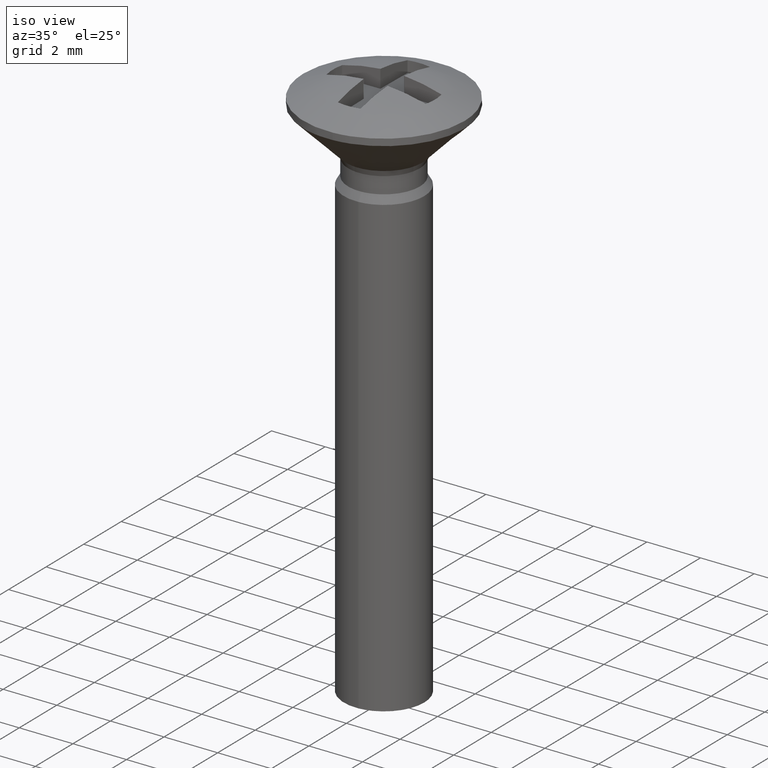
[diagram: clean part render]
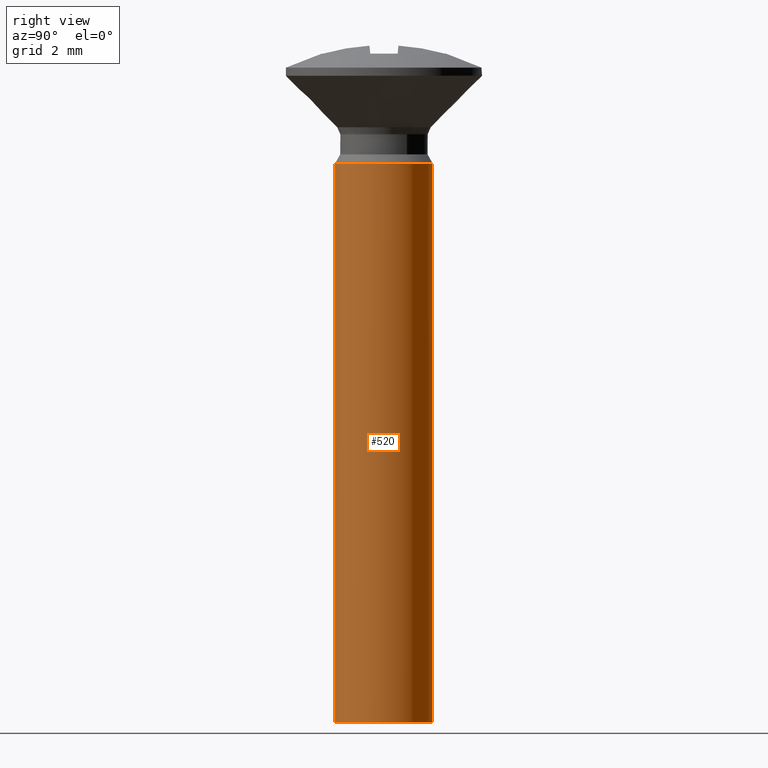
[diagram: tour spotlight — one face highlighted and labeled with its STEP entity id]
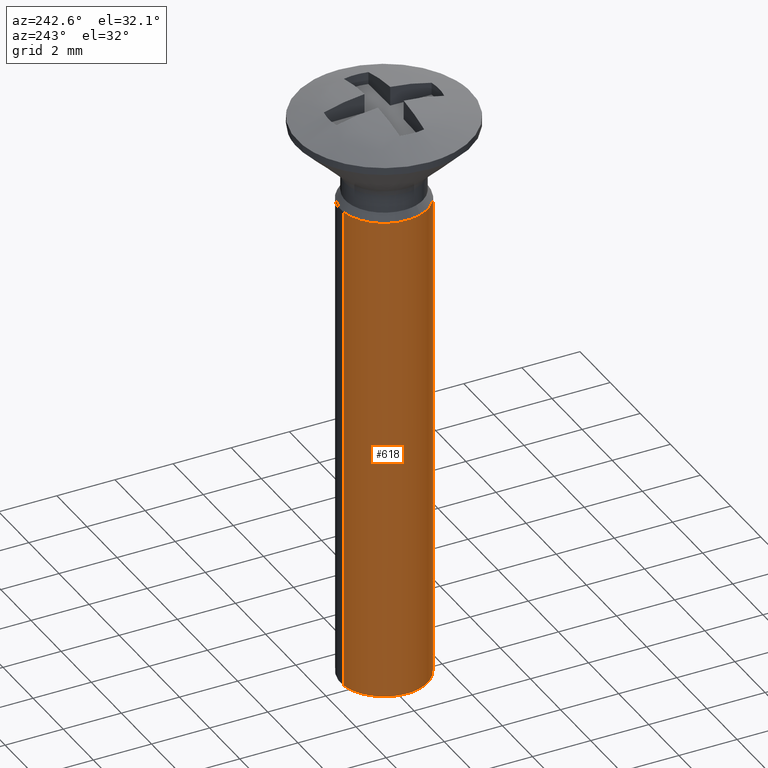
[diagram: tour spotlight — one face highlighted and labeled with its STEP entity id]
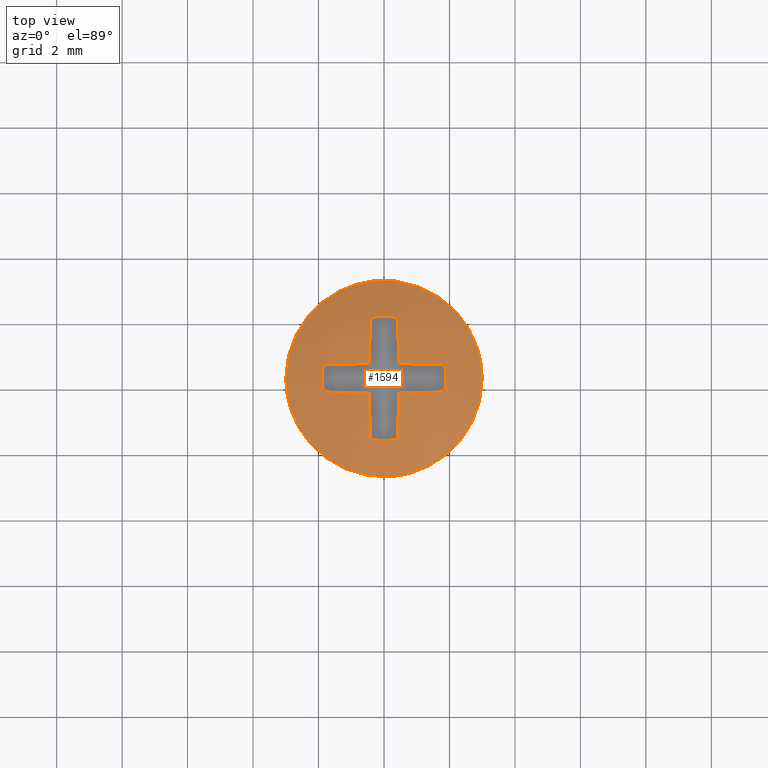
[diagram: tour spotlight — one face highlighted and labeled with its STEP entity id]
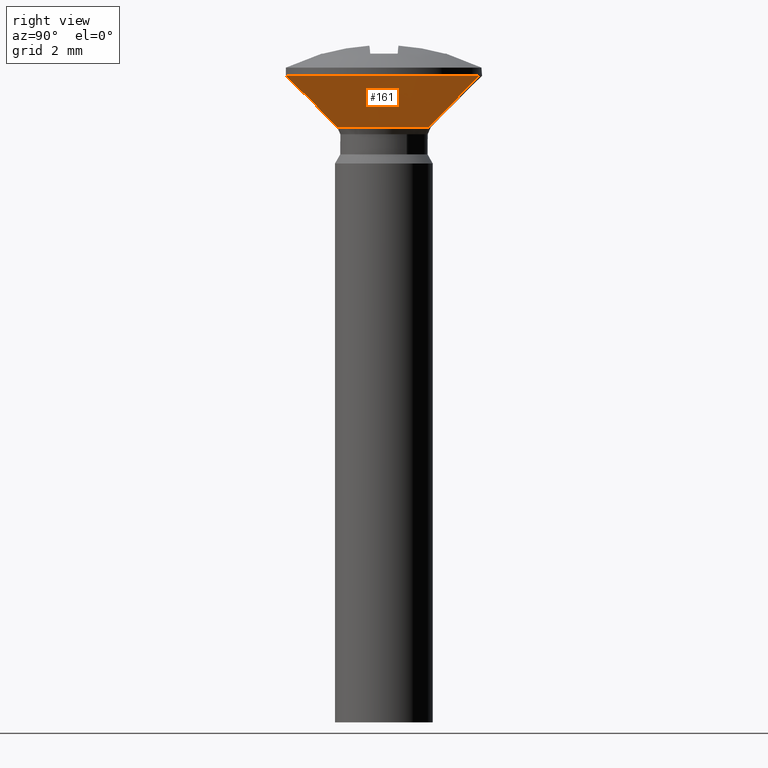
[diagram: tour spotlight — one face highlighted and labeled with its STEP entity id]
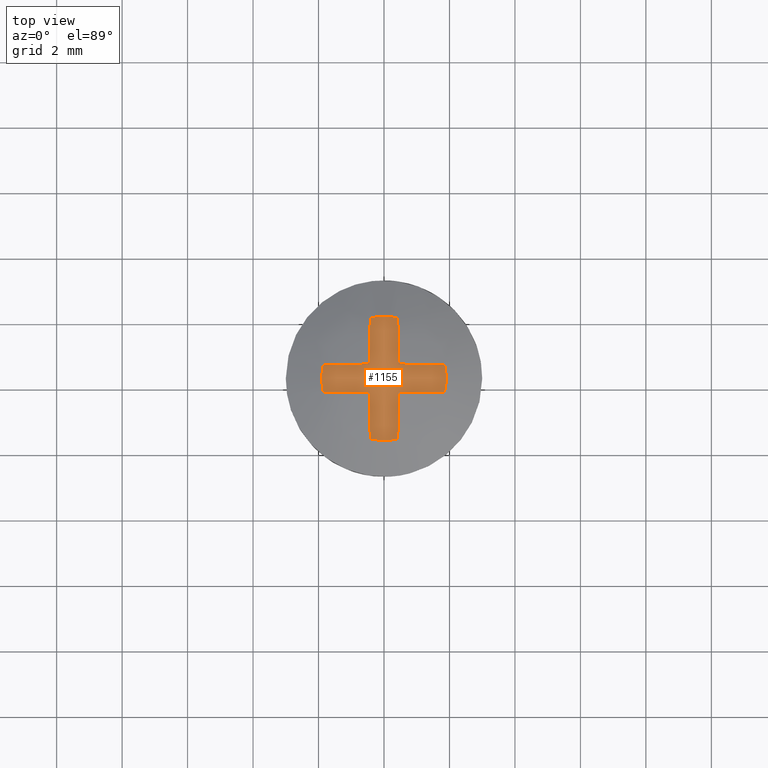
[diagram: tour spotlight — one face highlighted and labeled with its STEP entity id]
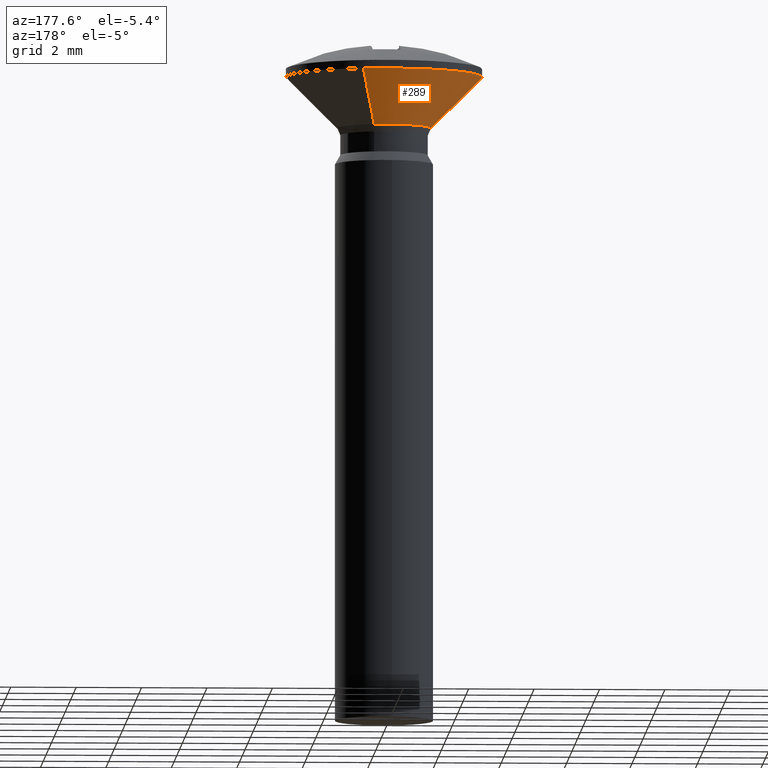
[diagram: tour spotlight — one face highlighted and labeled with its STEP entity id]
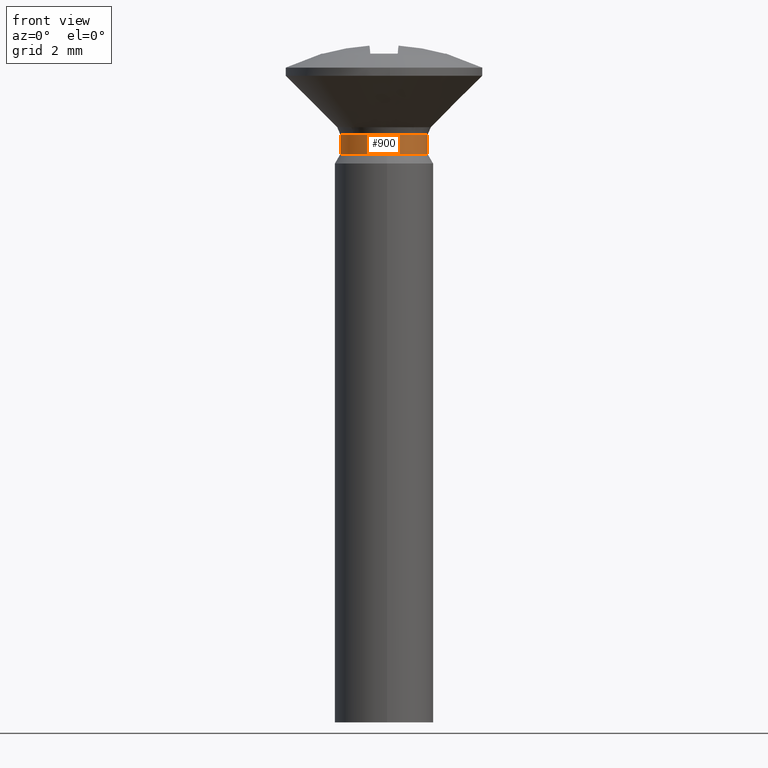
[diagram: tour spotlight — one face highlighted and labeled with its STEP entity id]
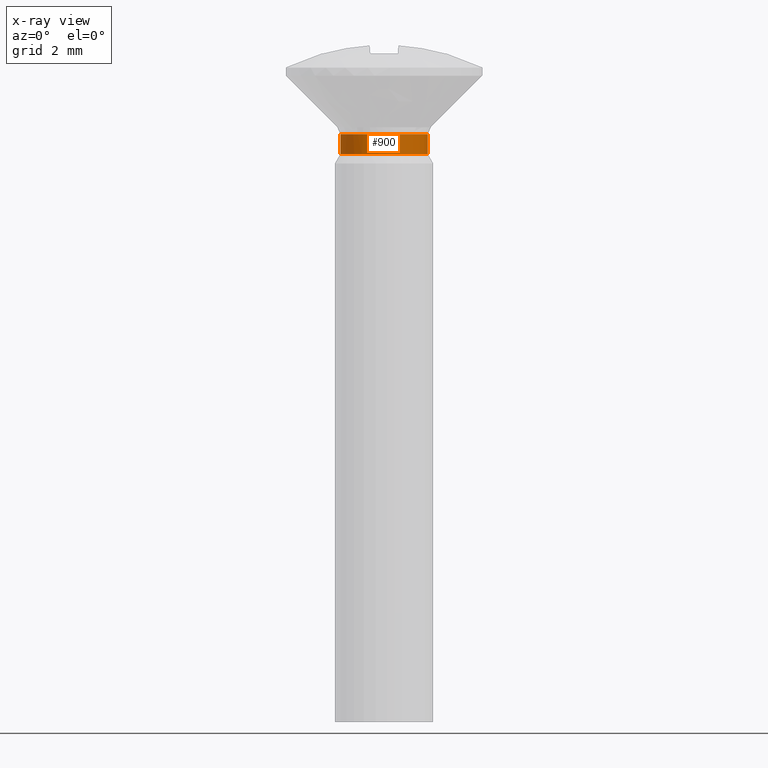
[diagram: x-ray of the same camera — body ghosted, this tour face saturated]
A machine part: a face-by-face anatomy tour. The part has 27 B-rep faces; the first image is the clean iso view, then the 7 largest visible faces are spotlighted one at a time (largest first), each with its STEP entity span.

Face 1 — right view, entity #520. In plain terms, the highlighted face is a freeform B-spline surface patch.
Definition (entity closure, byte-faithful):
#418=CARTESIAN_POINT('',(-0.177051351985138,1.489514289545500,-2.503967500000000));
#419=CARTESIAN_POINT('',(-0.134422092956966,1.494581423172908,-2.503967499999999));
#420=CARTESIAN_POINT('',(-0.091572809302285,1.497202197632800,-2.503967499999999));
#421=CARTESIAN_POINT('',(1.405629388330515,1.588775006935085,-2.503967500000000));
#422=CARTESIAN_POINT('',(1.497202197632800,0.091572809302285,-2.503967499999999));
#423=CARTESIAN_POINT('',(1.588775006935085,-1.405629388330515,-2.503967500000000));
#424=CARTESIAN_POINT('',(0.091572809302285,-1.497202197632800,-2.503967499999999));
#425=CARTESIAN_POINT('',(-0.177051351985138,1.489514289545500,-20.437400812500002));
#426=CARTESIAN_POINT('',(-0.134422092956966,1.494581423172908,-20.437400812500002));
#427=CARTESIAN_POINT('',(-0.091572809302285,1.497202197632800,-20.437400812500002));
#428=CARTESIAN_POINT('',(1.405629388330515,1.588775006935085,-20.437400812500002));
#429=CARTESIAN_POINT('',(1.497202197632800,0.091572809302285,-20.437400812500002));
#430=CARTESIAN_POINT('',(1.588775006935085,-1.405629388330515,-20.437400812500002));
#431=CARTESIAN_POINT('',(0.091572809302285,-1.497202197632800,-20.437400812500002));
#439=(BOUNDED_SURFACE()B_SPLINE_SURFACE(2,1,((#418,#425),(#419,#426),(#420,#427),(#421,#428),(#422,#429),(#423,#430),(#424,#431)),.UNSPECIFIED.,.F.,.F.,.U.)B_SPLINE_SURFACE_WITH_KNOTS((3,2,2,3),(2,2),(3.078760800517997,3.141592653589793,4.712388980384690,6.283185307179586),(0.0,17.933433312500011),.UNSPECIFIED.)GEOMETRIC_REPRESENTATION_ITEM()RATIONAL_B_SPLINE_SURFACE(((0.977505800795127,0.977505800795127),(0.988284271247462,0.988284271247462),(1.0,1.0),(0.707106781186548,0.707106781186548),(1.0,1.0),(0.707106781186548,0.707106781186548),(1.0,1.0)))REPRESENTATION_ITEM('')SURFACE());
#440=CARTESIAN_POINT('',(-0.177051351992532,1.489514289544621,-20.0));
#441=VERTEX_POINT('',#440);
#442=CARTESIAN_POINT('',(1.500000000000000,0.0,-20.0));
#443=VERTEX_POINT('',#442);
#444=CARTESIAN_POINT('',(-0.177051351992532,1.489514289544620,-20.000000000000004));
#445=CARTESIAN_POINT('',(-0.088836179485338,1.500000000000000,-20.0));
#446=CARTESIAN_POINT('',(0.0,1.500000000000000,-20.0));
#447=CARTESIAN_POINT('',(1.500000000000000,1.500000000000000,-19.999999999999996));
#448=CARTESIAN_POINT('',(1.500000000000000,0.0,-20.0));
#456=(BOUNDED_CURVE()B_SPLINE_CURVE(2,(#444,#445,#446,#447,#448),.UNSPECIFIED.,.F.,.U.)B_SPLINE_CURVE_WITH_KNOTS((3,2,3),(0.229562473513966,0.250000000000000,0.500000000000000),.UNSPECIFIED.)CURVE()GEOMETRIC_REPRESENTATION_ITEM()RATIONAL_B_SPLINE_CURVE((0.956026754184597,0.976055948331682,1.0,0.707106781186548,1.0))REPRESENTATION_ITEM(''));
#457=EDGE_CURVE('',#441,#443,#456,.T.);
#458=ORIENTED_EDGE('',*,*,#457,.F.);
#459=CARTESIAN_POINT('',(-0.177051351992532,1.489514289544621,-2.930700000000000));
#460=VERTEX_POINT('',#459);
#461=CARTESIAN_POINT('',(-0.177051351992532,1.489514289544621,-2.930700000000000));
#462=CARTESIAN_POINT('',(-0.177051351992532,1.489514289544621,-20.0));
#463=QUASI_UNIFORM_CURVE('',1,(#461,#462),.UNSPECIFIED.,.F.,.U.);
#464=EDGE_CURVE('',#460,#441,#463,.T.);
#465=ORIENTED_EDGE('',*,*,#464,.F.);
#466=CARTESIAN_POINT('',(1.500000000000000,0.0,-2.930700000000000));
#467=VERTEX_POINT('',#466);
#468=CARTESIAN_POINT('',(-0.177051351992532,1.489514289544620,-2.930700000000000));
#469=CARTESIAN_POINT('',(-0.088836179485338,1.500000000000000,-2.930700000000000));
#470=CARTESIAN_POINT('',(0.0,1.500000000000000,-2.930700000000000));
#471=CARTESIAN_POINT('',(1.500000000000000,1.500000000000000,-2.930700000000000));
#472=CARTESIAN_POINT('',(1.500000000000000,0.0,-2.930700000000000));
#480=(BOUNDED_CURVE()B_SPLINE_CURVE(2,(#468,#469,#470,#471,#472),.UNSPECIFIED.,.F.,.U.)B_SPLINE_CURVE_WITH_KNOTS((3,2,3),(0.229562473513966,0.250000000000000,0.500000000000000),.UNSPECIFIED.)CURVE()GEOMETRIC_REPRESENTATION_ITEM()RATIONAL_B_SPLINE_CURVE((0.956026754184597,0.976055948331682,1.0,0.707106781186548,1.0))REPRESENTATION_ITEM(''));
#481=EDGE_CURVE('',#460,#467,#480,.T.);
#482=ORIENTED_EDGE('',*,*,#481,.T.);
#483=CARTESIAN_POINT('',(0.091572809332409,-1.497202197634019,-2.930700000010583));
#484=VERTEX_POINT('',#483);
#485=CARTESIAN_POINT('',(1.500000000000000,0.0,-2.930700000000000));
#486=CARTESIAN_POINT('',(1.500000000000001,-1.411059100245468,-2.930700000000001));
#487=CARTESIAN_POINT('',(0.091572809332409,-1.497202197634019,-2.930700000010583));
#495=(BOUNDED_CURVE()B_SPLINE_CURVE(2,(#485,#486,#487),.UNSPECIFIED.,.F.,.U.)B_SPLINE_CURVE_WITH_KNOTS((3,3),(0.500000000000000,0.739332962228167),.UNSPECIFIED.)CURVE()GEOMETRIC_REPRESENTATION_ITEM()RATIONAL_B_SPLINE_CURVE((1.0,0.719603993299335,0.976072041643623))REPRESENTATION_ITEM(''));
#496=EDGE_CURVE('',#467,#484,#495,.T.);
#497=ORIENTED_EDGE('',*,*,#496,.T.);
#498=CARTESIAN_POINT('',(0.091572809329954,-1.497202197631108,-20.0));
#499=VERTEX_POINT('',#498);
#500=CARTESIAN_POINT('',(0.091572809332409,-1.497202197634019,-2.930700000010583));
#501=CARTESIAN_POINT('',(0.091572809329954,-1.497202197631108,-20.0));
#502=QUASI_UNIFORM_CURVE('',1,(#500,#501),.UNSPECIFIED.,.F.,.U.);
#503=EDGE_CURVE('',#484,#499,#502,.T.);
#504=ORIENTED_EDGE('',*,*,#503,.T.);
#505=CARTESIAN_POINT('',(1.500000000000000,0.0,-20.0));
#506=CARTESIAN_POINT('',(1.500000000000001,-1.411059100306283,-20.000000000000004));
#507=CARTESIAN_POINT('',(0.091572809329954,-1.497202197631109,-20.0));
#515=(BOUNDED_CURVE()B_SPLINE_CURVE(2,(#505,#506,#507),.UNSPECIFIED.,.F.,.U.)B_SPLINE_CURVE_WITH_KNOTS((3,3),(0.500000000000000,0.739332962235590),.UNSPECIFIED.)CURVE()GEOMETRIC_REPRESENTATION_ITEM()RATIONAL_B_SPLINE_CURVE((1.0,0.719603993290638,0.976072041659532))REPRESENTATION_ITEM(''));
#516=EDGE_CURVE('',#443,#499,#515,.T.);
#517=ORIENTED_EDGE('',*,*,#516,.F.);
#518=EDGE_LOOP('',(#458,#465,#482,#497,#504,#517));
#519=FACE_OUTER_BOUND('',#518,.T.);
#520=ADVANCED_FACE('',(#519),#439,.T.);

Face 2 — auxiliary view, entity #618. In plain terms, the highlighted face is a freeform B-spline surface patch.
Definition (entity closure, byte-faithful):
#440=CARTESIAN_POINT('',(-0.177051351992532,1.489514289544621,-20.0));
#441=VERTEX_POINT('',#440);
#459=CARTESIAN_POINT('',(-0.177051351992532,1.489514289544621,-2.930700000000000));
#460=VERTEX_POINT('',#459);
#461=CARTESIAN_POINT('',(-0.177051351992532,1.489514289544621,-2.930700000000000));
#462=CARTESIAN_POINT('',(-0.177051351992532,1.489514289544621,-20.0));
#463=QUASI_UNIFORM_CURVE('',1,(#461,#462),.UNSPECIFIED.,.F.,.U.);
#464=EDGE_CURVE('',#460,#441,#463,.T.);
#483=CARTESIAN_POINT('',(0.091572809332409,-1.497202197634019,-2.930700000010583));
#484=VERTEX_POINT('',#483);
#498=CARTESIAN_POINT('',(0.091572809329954,-1.497202197631108,-20.0));
#499=VERTEX_POINT('',#498);
#500=CARTESIAN_POINT('',(0.091572809332409,-1.497202197634019,-2.930700000010583));
#501=CARTESIAN_POINT('',(0.091572809329954,-1.497202197631108,-20.0));
#502=QUASI_UNIFORM_CURVE('',1,(#500,#501),.UNSPECIFIED.,.F.,.U.);
#503=EDGE_CURVE('',#484,#499,#502,.T.);
#521=CARTESIAN_POINT('',(0.091572809302285,-1.497202197632800,-2.503967499999999));
#522=CARTESIAN_POINT('',(-1.405629388330515,-1.588775006935085,-2.503967500000000));
#523=CARTESIAN_POINT('',(-1.497202197632800,-0.091572809302285,-2.503967499999999));
#524=CARTESIAN_POINT('',(-1.583679295098791,1.322315236259252,-2.503967500000000));
#525=CARTESIAN_POINT('',(-0.177051351985138,1.489514289545500,-2.503967500000000));
#526=CARTESIAN_POINT('',(0.091572809302285,-1.497202197632800,-20.437400812500002));
#527=CARTESIAN_POINT('',(-1.405629388330515,-1.588775006935085,-20.437400812500002));
#528=CARTESIAN_POINT('',(-1.497202197632800,-0.091572809302285,-20.437400812500002));
#529=CARTESIAN_POINT('',(-1.583679295098791,1.322315236259252,-20.437400812500002));
#530=CARTESIAN_POINT('',(-0.177051351985138,1.489514289545500,-20.437400812500002));
#538=(BOUNDED_SURFACE()B_SPLINE_SURFACE(2,1,((#521,#526),(#522,#527),(#523,#528),(#524,#529),(#525,#530)),.UNSPECIFIED.,.F.,.F.,.U.)B_SPLINE_SURFACE_WITH_KNOTS((3,2,3),(2,2),(0.0,1.570796326794897,3.078760800517997),(0.0,17.933433312500011),.UNSPECIFIED.)GEOMETRIC_REPRESENTATION_ITEM()RATIONAL_B_SPLINE_SURFACE(((1.0,1.0),(0.707106781186548,0.707106781186548),(1.0,1.0),(0.718822509939086,0.718822509939086),(0.977505800795127,0.977505800795127)))REPRESENTATION_ITEM('')SURFACE());
#539=CARTESIAN_POINT('',(-1.500000000000000,0.0,-20.0));
#540=VERTEX_POINT('',#539);
#541=CARTESIAN_POINT('',(-1.500000000000000,0.0,-20.0));
#542=CARTESIAN_POINT('',(-1.500000000000000,1.332261788913731,-19.999999999999996));
#543=CARTESIAN_POINT('',(-0.177051351992532,1.489514289544620,-20.000000000000004));
#551=(BOUNDED_CURVE()B_SPLINE_CURVE(2,(#541,#542,#543),.UNSPECIFIED.,.F.,.U.)B_SPLINE_CURVE_WITH_KNOTS((3,3),(0.0,0.229562473513966),.UNSPECIFIED.)CURVE()GEOMETRIC_REPRESENTATION_ITEM()RATIONAL_B_SPLINE_CURVE((1.0,0.731050832854866,0.956026754184597))REPRESENTATION_ITEM(''));
#552=EDGE_CURVE('',#540,#441,#551,.T.);
#553=ORIENTED_EDGE('',*,*,#552,.F.);
#554=CARTESIAN_POINT('',(0.091572809329954,-1.497202197631108,-20.0));
#555=CARTESIAN_POINT('',(0.045829144975629,-1.500000000000000,-19.999999999999993));
#556=CARTESIAN_POINT('',(0.0,-1.500000000000000,-20.0));
#557=CARTESIAN_POINT('',(-1.500000000000000,-1.500000000000000,-19.999999999999996));
#558=CARTESIAN_POINT('',(-1.500000000000000,0.0,-20.0));
#566=(BOUNDED_CURVE()B_SPLINE_CURVE(2,(#554,#555,#556,#557,#558),.UNSPECIFIED.,.F.,.U.)B_SPLINE_CURVE_WITH_KNOTS((3,2,3),(0.739332962235591,0.750000000000000,1.0),.UNSPECIFIED.)CURVE()GEOMETRIC_REPRESENTATION_ITEM()RATIONAL_B_SPLINE_CURVE((0.976072041659534,0.987502787895910,1.0,0.707106781186548,1.0))REPRESENTATION_ITEM(''));
#567=EDGE_CURVE('',#499,#540,#566,.T.);
#568=ORIENTED_EDGE('',*,*,#567,.F.);
#569=ORIENTED_EDGE('',*,*,#503,.F.);
#570=CARTESIAN_POINT('',(-1.404215368161664,-0.527426961599152,-2.930700000001795));
#571=VERTEX_POINT('',#570);
#572=CARTESIAN_POINT('',(0.091572809332409,-1.497202197634020,-2.930700000010583));
#573=CARTESIAN_POINT('',(0.045829145007925,-1.500000000000000,-2.930700000000000));
#574=CARTESIAN_POINT('',(0.0,-1.500000000000000,-2.930700000000000));
#575=CARTESIAN_POINT('',(-1.038914393523559,-1.500000000000000,-2.930700000000001));
#576=CARTESIAN_POINT('',(-1.404215368161664,-0.527426961599152,-2.930700000001795));
#584=(BOUNDED_CURVE()B_SPLINE_CURVE(2,(#572,#573,#574,#575,#576),.UNSPECIFIED.,.F.,.U.)B_SPLINE_CURVE_WITH_KNOTS((3,2,3),(0.739332962228168,0.750000000000000,0.940284170896338),.UNSPECIFIED.)CURVE()GEOMETRIC_REPRESENTATION_ITEM()RATIONAL_B_SPLINE_CURVE((0.976072041643625,0.987502787887214,1.0,0.777068226787691,0.893499554632618))REPRESENTATION_ITEM(''));
#585=EDGE_CURVE('',#484,#571,#584,.T.);
#586=ORIENTED_EDGE('',*,*,#585,.T.);
#587=CARTESIAN_POINT('',(-1.500000000000000,0.0,-2.930700000000000));
#588=VERTEX_POINT('',#587);
#589=CARTESIAN_POINT('',(-1.404215368161664,-0.527426961599152,-2.930700000001795));
#590=CARTESIAN_POINT('',(-1.500000000000000,-0.272411079112753,-2.930700000000000));
#591=CARTESIAN_POINT('',(-1.500000000000000,0.0,-2.930700000000000));
#599=(BOUNDED_CURVE()B_SPLINE_CURVE(2,(#589,#590,#591),.UNSPECIFIED.,.F.,.U.)B_SPLINE_CURVE_WITH_KNOTS((3,3),(0.940284170896338,1.0),.UNSPECIFIED.)CURVE()GEOMETRIC_REPRESENTATION_ITEM()RATIONAL_B_SPLINE_CURVE((0.893499554632619,0.930038554398858,1.0))REPRESENTATION_ITEM(''));
#600=EDGE_CURVE('',#571,#588,#599,.T.);
#601=ORIENTED_EDGE('',*,*,#600,.T.);
#602=CARTESIAN_POINT('',(-1.500000000000000,0.0,-2.930700000000000));
#603=CARTESIAN_POINT('',(-1.500000000000000,1.332261788913731,-2.930700000000000));
#604=CARTESIAN_POINT('',(-0.177051351992532,1.489514289544620,-2.930700000000000));
#612=(BOUNDED_CURVE()B_SPLINE_CURVE(2,(#602,#603,#604),.UNSPECIFIED.,.F.,.U.)B_SPLINE_CURVE_WITH_KNOTS((3,3),(0.0,0.229562473513966),.UNSPECIFIED.)CURVE()GEOMETRIC_REPRESENTATION_ITEM()RATIONAL_B_SPLINE_CURVE((1.0,0.731050832854866,0.956026754184597))REPRESENTATION_ITEM(''));
#613=EDGE_CURVE('',#588,#460,#612,.T.);
#614=ORIENTED_EDGE('',*,*,#613,.T.);
#615=ORIENTED_EDGE('',*,*,#464,.T.);
#616=EDGE_LOOP('',(#553,#568,#569,#586,#601,#614,#615));
#617=FACE_OUTER_BOUND('',#616,.T.);
#618=ADVANCED_FACE('',(#617),#538,.T.);

Face 3 — top view, entity #1594. In plain terms, the highlighted face is a freeform B-spline surface patch.
Definition (entity closure, byte-faithful):
#313=CARTESIAN_POINT('',(-0.354103404384466,2.979034471495527,-0.000000614545808));
#314=VERTEX_POINT('',#313);
#320=CARTESIAN_POINT('',(3.000007911848910,0.0,-0.000000614545808));
#321=VERTEX_POINT('',#320);
#322=CARTESIAN_POINT('',(-0.354103404384466,2.979034471495528,-0.000000614545808));
#323=CARTESIAN_POINT('',(-0.177672600207381,3.000005999371665,-0.000000614545808));
#324=CARTESIAN_POINT('',(0.000000220413464,3.000006057533757,-0.000000614545808));
#325=CARTESIAN_POINT('',(3.000008015528745,3.000007039601425,-0.000000614545808));
#326=CARTESIAN_POINT('',(3.000007911848910,0.0,-0.000000614545808));
#334=(BOUNDED_CURVE()B_SPLINE_CURVE(2,(#322,#323,#324,#325,#326),.UNSPECIFIED.,.F.,.U.)B_SPLINE_CURVE_WITH_KNOTS((3,2,3),(0.229562473514940,0.250000000000000,0.500000000000000),.UNSPECIFIED.)CURVE()GEOMETRIC_REPRESENTATION_ITEM()RATIONAL_B_SPLINE_CURVE((0.956026754186505,0.976055948332822,1.0,0.707106781186547,1.0))REPRESENTATION_ITEM(''));
#335=EDGE_CURVE('',#314,#321,#334,.T.);
#337=CARTESIAN_POINT('',(0.183145980874648,-2.994410318083473,-0.000000614545808));
#338=VERTEX_POINT('',#337);
#339=CARTESIAN_POINT('',(3.000007911848910,0.0,-0.000000614545808));
#340=CARTESIAN_POINT('',(3.000007851473057,-2.822124656290762,-0.000000614545808));
#341=CARTESIAN_POINT('',(0.183145980874648,-2.994410318083473,-0.000000614545808));
#349=(BOUNDED_CURVE()B_SPLINE_CURVE(2,(#339,#340,#341),.UNSPECIFIED.,.F.,.U.)B_SPLINE_CURVE_WITH_KNOTS((3,3),(0.500000000000000,0.739332962241106),.UNSPECIFIED.)CURVE()GEOMETRIC_REPRESENTATION_ITEM()RATIONAL_B_SPLINE_CURVE((1.0,0.719603993284176,0.976072041671354))REPRESENTATION_ITEM(''));
#350=EDGE_CURVE('',#321,#338,#349,.T.);
#384=CARTESIAN_POINT('',(-3.000007911848910,0.0,-0.000000614545808));
#385=VERTEX_POINT('',#384);
#386=CARTESIAN_POINT('',(0.183145980874648,-2.994410318083473,-0.000000614545808));
#387=CARTESIAN_POINT('',(0.091658412615683,-3.000005965947437,-0.000000614545808));
#388=CARTESIAN_POINT('',(-0.000000117171784,-3.000005996107184,-0.000000614545808));
#389=CARTESIAN_POINT('',(-3.000007968644840,-3.000006983243649,-0.000000614545808));
#390=CARTESIAN_POINT('',(-3.000007911848910,0.0,-0.000000614545808));
#398=(BOUNDED_CURVE()B_SPLINE_CURVE(2,(#386,#387,#388,#389,#390),.UNSPECIFIED.,.F.,.U.)B_SPLINE_CURVE_WITH_KNOTS((3,2,3),(0.739332962241106,0.750000000000000,1.0),.UNSPECIFIED.)CURVE()GEOMETRIC_REPRESENTATION_ITEM()RATIONAL_B_SPLINE_CURVE((0.976072041671354,0.987502787902372,1.0,0.707106781186547,1.0))REPRESENTATION_ITEM(''));
#399=EDGE_CURVE('',#338,#385,#398,.T.);
#401=CARTESIAN_POINT('',(-3.000007911848910,0.0,-0.000000614545808));
#402=CARTESIAN_POINT('',(-3.000007795115281,2.664529622877904,-0.000000614545808));
#403=CARTESIAN_POINT('',(-0.354103404384466,2.979034471495528,-0.000000614545808));
#411=(BOUNDED_CURVE()B_SPLINE_CURVE(2,(#401,#402,#403),.UNSPECIFIED.,.F.,.U.)B_SPLINE_CURVE_WITH_KNOTS((3,3),(0.0,0.229562473514940),.UNSPECIFIED.)CURVE()GEOMETRIC_REPRESENTATION_ITEM()RATIONAL_B_SPLINE_CURVE((1.0,0.731050832853725,0.956026754186505))REPRESENTATION_ITEM(''));
#412=EDGE_CURVE('',#385,#314,#411,.T.);
#1161=CARTESIAN_POINT('',(-0.444514101298721,-0.445241682772330,0.670739598632507));
#1162=VERTEX_POINT('',#1161);
#1163=CARTESIAN_POINT('',(-0.419999904431358,-1.853005488170305,0.428272420840025));
#1164=VERTEX_POINT('',#1163);
#1165=CARTESIAN_POINT('',(-0.444514101298721,-0.445241682772330,0.670739598632507));
#1166=CARTESIAN_POINT('',(-0.432032810308314,-1.161998172736202,0.624278496579576));
#1167=CARTESIAN_POINT('',(-0.419999904431358,-1.853005488170305,0.428272420840025));
#1175=(BOUNDED_CURVE()B_SPLINE_CURVE(2,(#1165,#1166,#1167),.UNSPECIFIED.,.F.,.U.)CURVE()GEOMETRIC_REPRESENTATION_ITEM()QUASI_UNIFORM_CURVE()RATIONAL_B_SPLINE_CURVE((1.0,0.994406717565368,1.0))REPRESENTATION_ITEM(''));
#1176=EDGE_CURVE('',#1162,#1164,#1175,.T.);
#1206=CARTESIAN_POINT('',(0.420012033108933,-1.853004313460055,0.428271972487515));
#1207=VERTEX_POINT('',#1206);
#1215=CARTESIAN_POINT('',(0.420012033108933,-1.853004313460055,0.428271972487515));
#1216=CARTESIAN_POINT('',(0.000006367179637,-1.948204371146818,0.428272196663770));
#1217=CARTESIAN_POINT('',(-0.419999904431358,-1.853005488170305,0.428272420840025));
#1225=(BOUNDED_CURVE()B_SPLINE_CURVE(2,(#1215,#1216,#1217),.UNSPECIFIED.,.F.,.U.)CURVE()GEOMETRIC_REPRESENTATION_ITEM()QUASI_UNIFORM_CURVE()RATIONAL_B_SPLINE_CURVE((1.0,0.975261390985823,1.0))REPRESENTATION_ITEM(''));
#1226=EDGE_CURVE('',#1207,#1164,#1225,.T.);
#1236=CARTESIAN_POINT('',(0.444526134407645,-0.445245996232391,0.670738521564005));
#1237=VERTEX_POINT('',#1236);
#1238=CARTESIAN_POINT('',(0.420012033108933,-1.853004313460055,0.428271972487515));
#1239=CARTESIAN_POINT('',(0.432044892631109,-1.161999660017402,0.624277159472914));
#1240=CARTESIAN_POINT('',(0.444526134407645,-0.445245996232391,0.670738521564005));
#1248=(BOUNDED_CURVE()B_SPLINE_CURVE(2,(#1238,#1239,#1240),.UNSPECIFIED.,.F.,.U.)CURVE()GEOMETRIC_REPRESENTATION_ITEM()QUASI_UNIFORM_CURVE()RATIONAL_B_SPLINE_CURVE((1.0,0.994406759534453,1.0))REPRESENTATION_ITEM(''));
#1249=EDGE_CURVE('',#1207,#1237,#1248,.T.);
#1266=CARTESIAN_POINT('',(1.853008065976145,-0.420000346327160,0.428271658217378));
#1267=VERTEX_POINT('',#1266);
#1268=CARTESIAN_POINT('',(0.444526134407645,-0.445245996232391,0.670738521564005));
#1269=CARTESIAN_POINT('',(1.161648240102786,-0.432392289547265,0.624355241913040));
#1270=CARTESIAN_POINT('',(1.853008065976145,-0.420000346327160,0.428271658217378));
#1278=(BOUNDED_CURVE()B_SPLINE_CURVE(2,(#1268,#1269,#1270),.UNSPECIFIED.,.F.,.U.)CURVE()GEOMETRIC_REPRESENTATION_ITEM()QUASI_UNIFORM_CURVE()RATIONAL_B_SPLINE_CURVE((1.0,0.994400955829269,1.0))REPRESENTATION_ITEM(''));
#1279=EDGE_CURVE('',#1237,#1267,#1278,.T.);
#1305=CARTESIAN_POINT('',(1.853008799019135,0.420005046502942,0.428271146078574));
#1306=VERTEX_POINT('',#1305);
#1314=CARTESIAN_POINT('',(1.853008799019135,0.420005046502942,0.428271146078574));
#1315=CARTESIAN_POINT('',(1.884447678748514,0.281300259874339,0.428271175215188));
#1316=CARTESIAN_POINT('',(1.899913900527755,0.141727021449770,0.428271233042447));
#1317=CARTESIAN_POINT('',(1.900059576246036,-0.068886290048356,0.428271361193093));
#1318=CARTESIAN_POINT('',(1.896230024133720,-0.139301584555733,0.428271410875968));
#1319=CARTESIAN_POINT('',(1.880524505820256,-0.280569666365259,0.428271524694958));
#1320=CARTESIAN_POINT('',(1.868727823580390,-0.350647112651438,0.428271588218577));
#1321=CARTESIAN_POINT('',(1.853008065976145,-0.420000346327160,0.428271658217378));
#1322=B_SPLINE_CURVE_WITH_KNOTS('',3,(#1314,#1315,#1316,#1317,#1318,#1319,#1320,#1321),.UNSPECIFIED.,.F.,.U.,(4,2,2,4),(0.0,0.500000000000000,0.750000000000000,1.0),.UNSPECIFIED.);
#1323=EDGE_CURVE('',#1306,#1267,#1322,.T.);
#1333=CARTESIAN_POINT('',(0.444514109473113,0.443438705295618,0.670858295383803));
#1334=VERTEX_POINT('',#1333);
#1335=CARTESIAN_POINT('',(1.853008799019135,0.420005046502942,0.428271146078574));
#1336=CARTESIAN_POINT('',(1.161648985182094,0.431507461173491,0.624412227939203));
#1337=CARTESIAN_POINT('',(0.444514109473113,0.443438705295618,0.670858295383803));
#1345=(BOUNDED_CURVE()B_SPLINE_CURVE(2,(#1335,#1336,#1337),.UNSPECIFIED.,.F.,.U.)CURVE()GEOMETRIC_REPRESENTATION_ITEM()QUASI_UNIFORM_CURVE()RATIONAL_B_SPLINE_CURVE((1.0,0.994401201960166,1.0))REPRESENTATION_ITEM(''));
#1346=EDGE_CURVE('',#1306,#1334,#1345,.T.);
#1363=CARTESIAN_POINT('',(0.420000046801797,1.852997308896245,0.428274740911332));
#1364=VERTEX_POINT('',#1363);
#1365=CARTESIAN_POINT('',(0.444514109473113,0.443438705295618,0.670858295383803));
#1366=CARTESIAN_POINT('',(0.432032781250787,1.161115078079375,0.624529043259577));
#1367=CARTESIAN_POINT('',(0.420000046801797,1.852997308896245,0.428274740911332));
#1375=(BOUNDED_CURVE()B_SPLINE_CURVE(2,(#1365,#1366,#1367),.UNSPECIFIED.,.F.,.U.)CURVE()GEOMETRIC_REPRESENTATION_ITEM()QUASI_UNIFORM_CURVE()RATIONAL_B_SPLINE_CURVE((1.0,0.994392672044637,1.0))REPRESENTATION_ITEM(''));
#1376=EDGE_CURVE('',#1334,#1364,#1375,.T.);
#1402=CARTESIAN_POINT('',(-0.420000000000009,1.853000000000110,0.428274669148076));
#1403=VERTEX_POINT('',#1402);
#1411=CARTESIAN_POINT('',(-0.420000000000009,1.853000000000110,0.428274669148076));
#1412=CARTESIAN_POINT('',(0.000000039447074,1.948195658880805,0.428274705029704));
#1413=CARTESIAN_POINT('',(0.420000046801797,1.852997308896245,0.428274740911332));
#1421=(BOUNDED_CURVE()B_SPLINE_CURVE(2,(#1411,#1412,#1413),.UNSPECIFIED.,.F.,.U.)CURVE()GEOMETRIC_REPRESENTATION_ITEM()QUASI_UNIFORM_CURVE()RATIONAL_B_SPLINE_CURVE((1.0,0.975261904934943,1.0))REPRESENTATION_ITEM(''));
#1422=EDGE_CURVE('',#1403,#1364,#1421,.T.);
#1432=CARTESIAN_POINT('',(-0.444514109473131,0.443438705295617,0.670858295383802));
#1433=VERTEX_POINT('',#1432);
#1434=CARTESIAN_POINT('',(-0.420000000000009,1.853000000000110,0.428274669148076));
#1435=CARTESIAN_POINT('',(-0.432032758358660,1.161116394377664,0.624528958286575));
#1436=CARTESIAN_POINT('',(-0.444514109473131,0.443438705295617,0.670858295383802));
#1444=(BOUNDED_CURVE()B_SPLINE_CURVE(2,(#1434,#1435,#1436),.UNSPECIFIED.,.F.,.U.)CURVE()GEOMETRIC_REPRESENTATION_ITEM()QUASI_UNIFORM_CURVE()RATIONAL_B_SPLINE_CURVE((1.0,0.994392651648375,1.0))REPRESENTATION_ITEM(''));
#1445=EDGE_CURVE('',#1403,#1433,#1444,.T.);
#1462=CARTESIAN_POINT('',(-1.852996522993270,0.420000057861196,0.428274964003197));
#1463=VERTEX_POINT('',#1462);
#1464=CARTESIAN_POINT('',(-0.444514109473131,0.443438705295617,0.670858295383802));
#1465=CARTESIAN_POINT('',(-1.161642528306745,0.431504924644259,0.624412819833730));
#1466=CARTESIAN_POINT('',(-1.852996522993270,0.420000057861196,0.428274964003197));
#1474=(BOUNDED_CURVE()B_SPLINE_CURVE(2,(#1464,#1465,#1466),.UNSPECIFIED.,.F.,.U.)CURVE()GEOMETRIC_REPRESENTATION_ITEM()QUASI_UNIFORM_CURVE()RATIONAL_B_SPLINE_CURVE((1.0,0.994401301253553,1.0))REPRESENTATION_ITEM(''));
#1475=EDGE_CURVE('',#1433,#1463,#1474,.T.);
#1501=CARTESIAN_POINT('',(-1.852996593810965,-0.420004313459945,0.428274669148076));
#1502=VERTEX_POINT('',#1501);
#1510=CARTESIAN_POINT('',(-1.852996593810965,-0.420004313459945,0.428274669148076));
#1511=CARTESIAN_POINT('',(-1.948194729189312,-0.000002231381714,0.428274816575637));
#1512=CARTESIAN_POINT('',(-1.852996522993270,0.420000057861196,0.428274964003197));
#1520=(BOUNDED_CURVE()B_SPLINE_CURVE(2,(#1510,#1511,#1512),.UNSPECIFIED.,.F.,.U.)CURVE()GEOMETRIC_REPRESENTATION_ITEM()QUASI_UNIFORM_CURVE()RATIONAL_B_SPLINE_CURVE((1.0,0.975261605686449,1.0))REPRESENTATION_ITEM(''));
#1521=EDGE_CURVE('',#1502,#1463,#1520,.T.);
#1531=CARTESIAN_POINT('',(-1.852996593810965,-0.420004313459945,0.428274669148076));
#1532=CARTESIAN_POINT('',(-1.161636371074775,-0.432392155400727,0.624357313373847));
#1533=CARTESIAN_POINT('',(-0.444514101298721,-0.445241682772330,0.670739598632507));
#1541=(BOUNDED_CURVE()B_SPLINE_CURVE(2,(#1531,#1532,#1533),.UNSPECIFIED.,.F.,.U.)CURVE()GEOMETRIC_REPRESENTATION_ITEM()QUASI_UNIFORM_CURVE()RATIONAL_B_SPLINE_CURVE((1.0,0.994400955619260,1.0))REPRESENTATION_ITEM(''));
#1542=EDGE_CURVE('',#1502,#1162,#1541,.T.);
#1550=CARTESIAN_POINT('',(-3.074376923825437,-3.074307098843776,-0.877998077890562));
#1551=CARTESIAN_POINT('',(-1.632179876231443,-3.264285612607722,-0.137736645291175));
#1552=CARTESIAN_POINT('',(1.632179876231442,-3.264285612607722,-0.137736645291175));
#1553=CARTESIAN_POINT('',(3.074376923825437,-3.074307098843776,-0.877998077890562));
#1554=CARTESIAN_POINT('',(-3.264350589565649,-1.632138224959296,-0.137772348199085));
#1555=CARTESIAN_POINT('',(-1.739679450379726,-1.739639938931153,0.699999999999998));
#1556=CARTESIAN_POINT('',(1.739679450379725,-1.739639938931153,0.699999999999998));
#1557=CARTESIAN_POINT('',(3.264350589565649,-1.632138224959296,-0.137772348199085));
#1558=CARTESIAN_POINT('',(-3.264350589565649,1.632147531931030,-0.137772348199085));
#1559=CARTESIAN_POINT('',(-1.739679450379726,1.739649858911882,0.699999999999998));
#1560=CARTESIAN_POINT('',(1.739679450379725,1.739649858911882,0.699999999999998));
#1561=CARTESIAN_POINT('',(3.264350589565649,1.632147531931030,-0.137772348199085));
#1562=CARTESIAN_POINT('',(-3.074374883327671,3.074322589058471,-0.878006028618580));
#1563=CARTESIAN_POINT('',(-1.632178725992900,3.264301926165483,-0.137745609019500));
#1564=CARTESIAN_POINT('',(1.632178725992899,3.264301926165483,-0.137745609019500));
#1565=CARTESIAN_POINT('',(3.074374883327670,3.074322589058471,-0.878006028618580));
#1573=(BOUNDED_SURFACE()B_SPLINE_SURFACE(2,2,((#1550,#1554,#1558,#1562),(#1551,#1555,#1559,#1563),(#1552,#1556,#1560,#1564),(#1553,#1557,#1561,#1565)),.UNSPECIFIED.,.F.,.F.,.U.)B_SPLINE_SURFACE_WITH_KNOTS((3,1,3),(3,1,3),(0.0,3.368429651261822,6.736859302523644),(0.0,3.368353147780156,6.736725502982239),.UNSPECIFIED.)GEOMETRIC_REPRESENTATION_ITEM()RATIONAL_B_SPLINE_SURFACE(((1.131728147513577,1.065865569672898,1.065865569672898,1.131728898654490),(1.065862577840679,1.0,1.0,1.065863328981592),(1.065862577840679,1.0,1.0,1.065863328981592),(1.131728147513577,1.065865569672898,1.065865569672898,1.131728898654490)))REPRESENTATION_ITEM('')SURFACE());
#1574=ORIENTED_EDGE('',*,*,#335,.F.);
#1575=ORIENTED_EDGE('',*,*,#412,.F.);
#1576=ORIENTED_EDGE('',*,*,#399,.F.);
#1577=ORIENTED_EDGE('',*,*,#350,.F.);
#1578=EDGE_LOOP('',(#1574,#1575,#1576,#1577));
#1579=FACE_OUTER_BOUND('',#1578,.T.);
#1580=ORIENTED_EDGE('',*,*,#1542,.F.);
#1581=ORIENTED_EDGE('',*,*,#1521,.T.);
#1582=ORIENTED_EDGE('',*,*,#1475,.F.);
#1583=ORIENTED_EDGE('',*,*,#1445,.F.);
#1584=ORIENTED_EDGE('',*,*,#1422,.T.);
#1585=ORIENTED_EDGE('',*,*,#1376,.F.);
#1586=ORIENTED_EDGE('',*,*,#1346,.F.);
#1587=ORIENTED_EDGE('',*,*,#1323,.T.);
#1588=ORIENTED_EDGE('',*,*,#1279,.F.);
#1589=ORIENTED_EDGE('',*,*,#1249,.F.);
#1590=ORIENTED_EDGE('',*,*,#1226,.T.);
#1591=ORIENTED_EDGE('',*,*,#1176,.F.);
#1592=EDGE_LOOP('',(#1580,#1581,#1582,#1583,#1584,#1585,#1586,#1587,#1588,#1589,#1590,#1591));
#1593=FACE_BOUND('',#1592,.T.);
#1594=ADVANCED_FACE('',(#1579,#1593),#1573,.T.);

Face 4 — right view, entity #161. In plain terms, the highlighted face is a freeform B-spline surface patch.
Definition (entity closure, byte-faithful):
#44=CARTESIAN_POINT('',(-0.424364608187227,-1.323433815451032,-1.860295660775576));
#45=CARTESIAN_POINT('',(-0.386488500974642,-1.335578948217983,-1.860295660775576));
#46=CARTESIAN_POINT('',(-0.347979782067010,-1.345537980078515,-1.860295660775576));
#47=CARTESIAN_POINT('',(0.997558198011505,-1.693517762145524,-1.860295660775576));
#48=CARTESIAN_POINT('',(1.345537980078515,-0.347979782067010,-1.860295660775576));
#49=CARTESIAN_POINT('',(1.693517762145524,0.997558198011505,-1.860295660775576));
#50=CARTESIAN_POINT('',(0.347979782067010,1.345537980078515,-1.860295660775576));
#51=CARTESIAN_POINT('',(-0.928313732377329,-2.895061843219694,-0.209742608480603));
#52=CARTESIAN_POINT('',(-0.845458306227074,-2.921629783409779,-0.209742608480603));
#53=CARTESIAN_POINT('',(-0.761219017915732,-2.943415544660718,-0.209742608480603));
#54=CARTESIAN_POINT('',(2.182196526744986,-3.704634562576450,-0.209742608480603));
#55=CARTESIAN_POINT('',(2.943415544660718,-0.761219017915732,-0.209742608480603));
#56=CARTESIAN_POINT('',(3.704634562576450,2.182196526744986,-0.209742608480603));
#57=CARTESIAN_POINT('',(0.761219017915732,2.943415544660718,-0.209742608480603));
#65=(BOUNDED_SURFACE()B_SPLINE_SURFACE(2,1,((#44,#51),(#45,#52),(#46,#53),(#47,#54),(#48,#55),(#49,#56),(#50,#57)),.UNSPECIFIED.,.F.,.F.,.U.)B_SPLINE_SURFACE_WITH_KNOTS((3,2,2,3),(2,2),(0.0,0.201490365716883,5.238749508638939,10.276008651561000),(0.0,2.334160396348168),.UNSPECIFIED.)GEOMETRIC_REPRESENTATION_ITEM()RATIONAL_B_SPLINE_SURFACE(((0.977505800795127,0.977505800795127),(0.988284271247462,0.988284271247462),(1.0,1.0),(0.707106781186548,0.707106781186548),(1.0,1.0),(0.707106781186548,0.707106781186548),(1.0,1.0)))REPRESENTATION_ITEM('')SURFACE());
#66=CARTESIAN_POINT('',(0.183145739371230,-2.994406369537615,-0.249999999999993));
#67=VERTEX_POINT('',#66);
#68=CARTESIAN_POINT('',(-0.916022290355133,-2.856729452291915,-0.249999999996738));
#69=VERTEX_POINT('',#68);
#70=CARTESIAN_POINT('',(0.183145739371230,-2.994406369537616,-0.249999999999993));
#71=CARTESIAN_POINT('',(0.091658400837837,-3.000001813726419,-0.249999999999728));
#72=CARTESIAN_POINT('',(0.000000101023165,-3.000001651638165,-0.249999999999461));
#73=CARTESIAN_POINT('',(-0.469215216280595,-3.000000821879243,-0.249999999998093));
#74=CARTESIAN_POINT('',(-0.916022290355133,-2.856729452291915,-0.249999999996738));
#82=(BOUNDED_CURVE()B_SPLINE_CURVE(2,(#70,#71,#72,#73,#74),.UNSPECIFIED.,.F.,.U.)B_SPLINE_CURVE_WITH_KNOTS((3,2,3),(0.739332962241107,0.750000000000000,0.801933060485101),.UNSPECIFIED.)CURVE()GEOMETRIC_REPRESENTATION_ITEM()RATIONAL_B_SPLINE_CURVE((0.976072041671355,0.987502787902372,1.0,0.939156635006740,0.903591527247977))REPRESENTATION_ITEM(''));
#83=EDGE_CURVE('',#67,#69,#82,.T.);
#84=ORIENTED_EDGE('',*,*,#83,.T.);
#85=CARTESIAN_POINT('',(-0.436356260711727,-1.360831275420806,-1.821020151211639));
#86=VERTEX_POINT('',#85);
#87=CARTESIAN_POINT('',(-0.436356260711727,-1.360831275420806,-1.821020151211639));
#88=CARTESIAN_POINT('',(-0.916022290355133,-2.856729452291915,-0.249999999996738));
#89=QUASI_UNIFORM_CURVE('',1,(#87,#88),.UNSPECIFIED.,.F.,.U.);
#90=EDGE_CURVE('',#86,#69,#89,.T.);
#91=ORIENTED_EDGE('',*,*,#90,.F.);
#92=CARTESIAN_POINT('',(1.429079616195524,0.0,-1.821020150118700));
#93=VERTEX_POINT('',#92);
#94=CARTESIAN_POINT('',(1.429079616195524,0.0,-1.821020150118700));
#95=CARTESIAN_POINT('',(1.429079616195524,-1.429079616195524,-1.821020150118701));
#96=CARTESIAN_POINT('',(0.0,-1.429079616195524,-1.821020150118700));
#97=CARTESIAN_POINT('',(-0.223515324610387,-1.429079616195525,-1.821020150118700));
#98=CARTESIAN_POINT('',(-0.436356260711727,-1.360831275420806,-1.821020151211639));
#106=(BOUNDED_CURVE()B_SPLINE_CURVE(2,(#94,#95,#96,#97,#98),.UNSPECIFIED.,.F.,.U.)B_SPLINE_CURVE_WITH_KNOTS((3,2,3),(0.500000000000000,0.750000000000000,0.801933060541448),.UNSPECIFIED.)CURVE()GEOMETRIC_REPRESENTATION_ITEM()RATIONAL_B_SPLINE_CURVE((1.0,0.707106781186548,1.0,0.939156634940725,0.903591527170800))REPRESENTATION_ITEM(''));
#107=EDGE_CURVE('',#93,#86,#106,.T.);
#108=ORIENTED_EDGE('',*,*,#107,.F.);
#109=CARTESIAN_POINT('',(0.357812960201264,1.383560058317277,-1.821020150107030));
#110=VERTEX_POINT('',#109);
#111=CARTESIAN_POINT('',(0.357812960201264,1.383560058317277,-1.821020150107030));
#112=CARTESIAN_POINT('',(1.429079616195524,1.106511663363800,-1.821020150118700));
#113=CARTESIAN_POINT('',(1.429079616195524,0.0,-1.821020150118700));
#121=(BOUNDED_CURVE()B_SPLINE_CURVE(2,(#111,#112,#113),.UNSPECIFIED.,.F.,.U.)B_SPLINE_CURVE_WITH_KNOTS((3,3),(0.292726229734133,0.500000000000000),.UNSPECIFIED.)CURVE()GEOMETRIC_REPRESENTATION_ITEM()RATIONAL_B_SPLINE_CURVE((0.916996154440122,0.757163673004921,1.0))REPRESENTATION_ITEM(''));
#122=EDGE_CURVE('',#110,#93,#121,.T.);
#123=ORIENTED_EDGE('',*,*,#122,.F.);
#124=CARTESIAN_POINT('',(0.751138588778761,2.904441413269793,-0.250001816337524));
#125=VERTEX_POINT('',#124);
#126=CARTESIAN_POINT('',(0.357812960201264,1.383560058317277,-1.821020150107030));
#127=CARTESIAN_POINT('',(0.751138588778761,2.904441413269793,-0.250001816337524));
#128=QUASI_UNIFORM_CURVE('',1,(#126,#127),.UNSPECIFIED.,.F.,.U.);
#129=EDGE_CURVE('',#110,#125,#128,.T.);
#130=ORIENTED_EDGE('',*,*,#129,.T.);
#131=CARTESIAN_POINT('',(3.0,0.0,-0.249999999999993));
#132=VERTEX_POINT('',#131);
#133=CARTESIAN_POINT('',(0.751138588778761,2.904441413269793,-0.250001816337524));
#134=CARTESIAN_POINT('',(2.999999772627413,2.322848104502776,-0.250000908168758));
#135=CARTESIAN_POINT('',(3.0,0.0,-0.249999999999993));
#143=(BOUNDED_CURVE()B_SPLINE_CURVE(2,(#133,#134,#135),.UNSPECIFIED.,.F.,.U.)B_SPLINE_CURVE_WITH_KNOTS((3,3),(0.292726175648459,0.500000000000000),.UNSPECIFIED.)CURVE()GEOMETRIC_REPRESENTATION_ITEM()RATIONAL_B_SPLINE_CURVE((0.916996237852994,0.757163609639613,1.0))REPRESENTATION_ITEM(''));
#144=EDGE_CURVE('',#125,#132,#143,.T.);
#145=ORIENTED_EDGE('',*,*,#144,.T.);
#146=CARTESIAN_POINT('',(3.0,0.0,-0.249999999999993));
#147=CARTESIAN_POINT('',(3.000000060375853,-2.822119187839429,-0.249999999999993));
#148=CARTESIAN_POINT('',(0.183145739371230,-2.994406369537616,-0.249999999999993));
#156=(BOUNDED_CURVE()B_SPLINE_CURVE(2,(#146,#147,#148),.UNSPECIFIED.,.F.,.U.)B_SPLINE_CURVE_WITH_KNOTS((3,3),(0.500000000000000,0.739332962241107),.UNSPECIFIED.)CURVE()GEOMETRIC_REPRESENTATION_ITEM()RATIONAL_B_SPLINE_CURVE((1.0,0.719603993284175,0.976072041671355))REPRESENTATION_ITEM(''));
#157=EDGE_CURVE('',#132,#67,#156,.T.);
#158=ORIENTED_EDGE('',*,*,#157,.T.);
#159=EDGE_LOOP('',(#84,#91,#108,#123,#130,#145,#158));
#160=FACE_OUTER_BOUND('',#159,.T.);
#161=ADVANCED_FACE('',(#160),#65,.T.);

Face 5 — top view, entity #1155. In plain terms, the highlighted face is a freeform B-spline surface patch.
Definition (entity closure, byte-faithful):
#1032=CARTESIAN_POINT('',(-2.089810552093145,2.089811702204453,0.0));
#1033=CARTESIAN_POINT('',(2.089821854383851,2.089811702204453,0.0));
#1034=CARTESIAN_POINT('',(-2.089810552093145,-2.089819850388182,0.0));
#1035=CARTESIAN_POINT('',(2.089821854383851,-2.089819850388182,0.0));
#1036=B_SPLINE_SURFACE_WITH_KNOTS('',1,1,((#1032,#1034),(#1033,#1035)),.UNSPECIFIED.,.F.,.F.,.U.,(2,2),(2,2),(0.0,4.179632406476996),(0.0,4.179631552592634),.UNSPECIFIED.);
#1037=CARTESIAN_POINT('',(-0.444514101298721,-0.445241682772330,0.0));
#1038=VERTEX_POINT('',#1037);
#1039=CARTESIAN_POINT('',(-1.852996593810965,-0.420004313459945,0.0));
#1040=VERTEX_POINT('',#1039);
#1041=CARTESIAN_POINT('',(-0.444514101298721,-0.445241682772330,0.0));
#1042=CARTESIAN_POINT('',(-1.852996593810965,-0.420004313459945,0.0));
#1043=QUASI_UNIFORM_CURVE('',1,(#1041,#1042),.UNSPECIFIED.,.F.,.U.);
#1044=EDGE_CURVE('',#1038,#1040,#1043,.T.);
#1045=ORIENTED_EDGE('',*,*,#1044,.F.);
#1046=CARTESIAN_POINT('',(-0.420006354935278,-1.853005600496625,0.0));
#1047=VERTEX_POINT('',#1046);
#1048=CARTESIAN_POINT('',(-0.420006354935278,-1.853005600496625,0.0));
#1049=CARTESIAN_POINT('',(-0.444514101298721,-0.445241682772330,0.0));
#1050=QUASI_UNIFORM_CURVE('',1,(#1048,#1049),.UNSPECIFIED.,.F.,.U.);
#1051=EDGE_CURVE('',#1047,#1038,#1050,.T.);
#1052=ORIENTED_EDGE('',*,*,#1051,.F.);
#1053=CARTESIAN_POINT('',(0.420012033108933,-1.853004313460055,0.0));
#1054=VERTEX_POINT('',#1053);
#1055=CARTESIAN_POINT('',(-0.420006354935279,-1.853005600496624,0.0));
#1056=CARTESIAN_POINT('',(0.000002984949144,-1.948205848049222,0.0));
#1057=CARTESIAN_POINT('',(0.420012033108933,-1.853004313460056,0.0));
#1065=(BOUNDED_CURVE()B_SPLINE_CURVE(2,(#1055,#1056,#1057),.UNSPECIFIED.,.F.,.U.)CURVE()GEOMETRIC_REPRESENTATION_ITEM()QUASI_UNIFORM_CURVE()RATIONAL_B_SPLINE_CURVE((1.0,0.975261026472623,1.0))REPRESENTATION_ITEM(''));
#1066=EDGE_CURVE('',#1047,#1054,#1065,.T.);
#1067=ORIENTED_EDGE('',*,*,#1066,.T.);
#1068=CARTESIAN_POINT('',(0.444526134407645,-0.445245996232391,0.0));
#1069=VERTEX_POINT('',#1068);
#1070=CARTESIAN_POINT('',(0.444526134407645,-0.445245996232391,0.0));
#1071=CARTESIAN_POINT('',(0.420012033108933,-1.853004313460055,0.0));
#1072=QUASI_UNIFORM_CURVE('',1,(#1070,#1071),.UNSPECIFIED.,.F.,.U.);
#1073=EDGE_CURVE('',#1069,#1054,#1072,.T.);
#1074=ORIENTED_EDGE('',*,*,#1073,.F.);
#1075=CARTESIAN_POINT('',(1.853008065976145,-0.420000346327160,0.0));
#1076=VERTEX_POINT('',#1075);
#1077=CARTESIAN_POINT('',(1.853008065976145,-0.420000346327160,0.0));
#1078=CARTESIAN_POINT('',(0.444526134407645,-0.445245996232391,0.0));
#1079=QUASI_UNIFORM_CURVE('',1,(#1077,#1078),.UNSPECIFIED.,.F.,.U.);
#1080=EDGE_CURVE('',#1076,#1069,#1079,.T.);
#1081=ORIENTED_EDGE('',*,*,#1080,.F.);
#1082=CARTESIAN_POINT('',(1.853008799019135,0.420005046502942,0.0));
#1083=VERTEX_POINT('',#1082);
#1084=CARTESIAN_POINT('',(1.853008065976145,-0.420000346327160,0.0));
#1085=CARTESIAN_POINT('',(1.948206788875011,0.000002267011653,0.0));
#1086=CARTESIAN_POINT('',(1.853008799019137,0.420005046502941,0.0));
#1094=(BOUNDED_CURVE()B_SPLINE_CURVE(2,(#1084,#1085,#1086),.UNSPECIFIED.,.F.,.U.)CURVE()GEOMETRIC_REPRESENTATION_ITEM()QUASI_UNIFORM_CURVE()RATIONAL_B_SPLINE_CURVE((1.0,0.975261558070087,1.0))REPRESENTATION_ITEM(''));
#1095=EDGE_CURVE('',#1076,#1083,#1094,.T.);
#1096=ORIENTED_EDGE('',*,*,#1095,.T.);
#1097=CARTESIAN_POINT('',(0.444514109473113,0.443438705295618,0.0));
#1098=VERTEX_POINT('',#1097);
#1099=CARTESIAN_POINT('',(0.444514109473113,0.443438705295618,0.0));
#1100=CARTESIAN_POINT('',(1.853008799019135,0.420005046502942,0.0));
#1101=QUASI_UNIFORM_CURVE('',1,(#1099,#1100),.UNSPECIFIED.,.F.,.U.);
#1102=EDGE_CURVE('',#1098,#1083,#1101,.T.);
#1103=ORIENTED_EDGE('',*,*,#1102,.F.);
#1104=CARTESIAN_POINT('',(0.420001079370150,1.852997326853955,0.0));
#1105=VERTEX_POINT('',#1104);
#1106=CARTESIAN_POINT('',(0.420001079370150,1.852997326853955,0.0));
#1107=CARTESIAN_POINT('',(0.444514109473113,0.443438705295618,0.0));
#1108=QUASI_UNIFORM_CURVE('',1,(#1106,#1107),.UNSPECIFIED.,.F.,.U.);
#1109=EDGE_CURVE('',#1105,#1098,#1108,.T.);
#1110=ORIENTED_EDGE('',*,*,#1109,.F.);
#1111=CARTESIAN_POINT('',(-0.420000000000009,1.853000000000110,0.0));
#1112=VERTEX_POINT('',#1111);
#1113=CARTESIAN_POINT('',(0.420001079370150,1.852997326853955,0.0));
#1114=CARTESIAN_POINT('',(0.000000580859724,1.948195895283205,0.0));
#1115=CARTESIAN_POINT('',(-0.420000000000009,1.853000000000110,0.0));
#1123=(BOUNDED_CURVE()B_SPLINE_CURVE(2,(#1113,#1114,#1115),.UNSPECIFIED.,.F.,.U.)CURVE()GEOMETRIC_REPRESENTATION_ITEM()QUASI_UNIFORM_CURVE()RATIONAL_B_SPLINE_CURVE((1.0,0.975261846585482,1.0))REPRESENTATION_ITEM(''));
#1124=EDGE_CURVE('',#1105,#1112,#1123,.T.);
#1125=ORIENTED_EDGE('',*,*,#1124,.T.);
#1126=CARTESIAN_POINT('',(-0.444514109473131,0.443438705295617,0.0));
#1127=VERTEX_POINT('',#1126);
#1128=CARTESIAN_POINT('',(-0.444514109473131,0.443438705295617,0.0));
#1129=CARTESIAN_POINT('',(-0.420000000000009,1.853000000000110,0.0));
#1130=QUASI_UNIFORM_CURVE('',1,(#1128,#1129),.UNSPECIFIED.,.F.,.U.);
#1131=EDGE_CURVE('',#1127,#1112,#1130,.T.);
#1132=ORIENTED_EDGE('',*,*,#1131,.F.);
#1133=CARTESIAN_POINT('',(-1.852996593810965,0.420004313459948,0.0));
#1134=VERTEX_POINT('',#1133);
#1135=CARTESIAN_POINT('',(-1.852996593810965,0.420004313459948,0.0));
#1136=CARTESIAN_POINT('',(-0.444514109473131,0.443438705295617,0.0));
#1137=QUASI_UNIFORM_CURVE('',1,(#1135,#1136),.UNSPECIFIED.,.F.,.U.);
#1138=EDGE_CURVE('',#1134,#1127,#1137,.T.);
#1139=ORIENTED_EDGE('',*,*,#1138,.F.);
#1140=CARTESIAN_POINT('',(-1.852996593810965,0.420004313459949,0.0));
#1141=CARTESIAN_POINT('',(-1.948195702063053,1.951564E-015,0.0));
#1142=CARTESIAN_POINT('',(-1.852996593810966,-0.420004313459945,0.0));
#1150=(BOUNDED_CURVE()B_SPLINE_CURVE(2,(#1140,#1141,#1142),.UNSPECIFIED.,.F.,.U.)CURVE()GEOMETRIC_REPRESENTATION_ITEM()QUASI_UNIFORM_CURVE()RATIONAL_B_SPLINE_CURVE((1.0,0.975261365163666,1.0))REPRESENTATION_ITEM(''));
#1151=EDGE_CURVE('',#1134,#1040,#1150,.T.);
#1152=ORIENTED_EDGE('',*,*,#1151,.T.);
#1153=EDGE_LOOP('',(#1045,#1052,#1067,#1074,#1081,#1096,#1103,#1110,#1125,#1132,#1139,#1152));
#1154=FACE_OUTER_BOUND('',#1153,.T.);
#1155=ADVANCED_FACE('',(#1154),#1036,.F.);

Face 6 — auxiliary view, entity #289. In plain terms, the highlighted face is a freeform B-spline surface patch.
Definition (entity closure, byte-faithful):
#68=CARTESIAN_POINT('',(-0.916022290355133,-2.856729452291915,-0.249999999996738));
#69=VERTEX_POINT('',#68);
#85=CARTESIAN_POINT('',(-0.436356260711727,-1.360831275420806,-1.821020151211639));
#86=VERTEX_POINT('',#85);
#87=CARTESIAN_POINT('',(-0.436356260711727,-1.360831275420806,-1.821020151211639));
#88=CARTESIAN_POINT('',(-0.916022290355133,-2.856729452291915,-0.249999999996738));
#89=QUASI_UNIFORM_CURVE('',1,(#87,#88),.UNSPECIFIED.,.F.,.U.);
#90=EDGE_CURVE('',#86,#69,#89,.T.);
#109=CARTESIAN_POINT('',(0.357812960201264,1.383560058317277,-1.821020150107030));
#110=VERTEX_POINT('',#109);
#124=CARTESIAN_POINT('',(0.751138588778761,2.904441413269793,-0.250001816337524));
#125=VERTEX_POINT('',#124);
#126=CARTESIAN_POINT('',(0.357812960201264,1.383560058317277,-1.821020150107030));
#127=CARTESIAN_POINT('',(0.751138588778761,2.904441413269793,-0.250001816337524));
#128=QUASI_UNIFORM_CURVE('',1,(#126,#127),.UNSPECIFIED.,.F.,.U.);
#129=EDGE_CURVE('',#110,#125,#128,.T.);
#162=CARTESIAN_POINT('',(0.347979782067010,1.345537980078515,-1.860295660775576));
#163=CARTESIAN_POINT('',(-0.997558198011505,1.693517762145524,-1.860295660775576));
#164=CARTESIAN_POINT('',(-1.345537980078515,0.347979782067010,-1.860295660775576));
#165=CARTESIAN_POINT('',(-1.674153884289418,-0.922683637937278,-1.860295660775575));
#166=CARTESIAN_POINT('',(-0.424364608187227,-1.323433815451032,-1.860295660775576));
#167=CARTESIAN_POINT('',(0.761219017915732,2.943415544660718,-0.209742608480603));
#168=CARTESIAN_POINT('',(-2.182196526744986,3.704634562576450,-0.209742608480603));
#169=CARTESIAN_POINT('',(-2.943415544660718,0.761219017915732,-0.209742608480603));
#170=CARTESIAN_POINT('',(-3.662275342747330,-2.018405576742034,-0.209742608480603));
#171=CARTESIAN_POINT('',(-0.928313732377329,-2.895061843219694,-0.209742608480603));
#179=(BOUNDED_SURFACE()B_SPLINE_SURFACE(2,1,((#162,#167),(#163,#168),(#164,#169),(#165,#170),(#166,#171)),.UNSPECIFIED.,.F.,.F.,.U.)B_SPLINE_SURFACE_WITH_KNOTS((3,2,3),(2,2),(0.0,5.037259142922057,9.873027920127232),(0.0,2.334160396348169),.UNSPECIFIED.)GEOMETRIC_REPRESENTATION_ITEM()RATIONAL_B_SPLINE_SURFACE(((1.0,1.0),(0.707106781186548,0.707106781186548),(1.0,1.0),(0.718822509939086,0.718822509939086),(0.977505800795127,0.977505800795127)))REPRESENTATION_ITEM('')SURFACE());
#180=CARTESIAN_POINT('',(-3.0,0.0,-0.249999999999993));
#181=VERTEX_POINT('',#180);
#182=CARTESIAN_POINT('',(-0.916022290355133,-2.856729452291915,-0.249999999996738));
#183=CARTESIAN_POINT('',(-3.0,-2.188493251910522,-0.249999999999993));
#184=CARTESIAN_POINT('',(-3.0,0.0,-0.249999999999993));
#192=(BOUNDED_CURVE()B_SPLINE_CURVE(2,(#182,#183,#184),.UNSPECIFIED.,.F.,.U.)B_SPLINE_CURVE_WITH_KNOTS((3,3),(0.801933060485101,1.0),.UNSPECIFIED.)CURVE()GEOMETRIC_REPRESENTATION_ITEM()RATIONAL_B_SPLINE_CURVE((0.903591527247976,0.767950146179808,1.0))REPRESENTATION_ITEM(''));
#193=EDGE_CURVE('',#69,#181,#192,.T.);
#194=ORIENTED_EDGE('',*,*,#193,.T.);
#195=CARTESIAN_POINT('',(-0.354102937449944,2.979030543224859,-0.249999999999993));
#196=VERTEX_POINT('',#195);
#197=CARTESIAN_POINT('',(-3.0,0.0,-0.249999999999993));
#198=CARTESIAN_POINT('',(-3.000000116733629,2.664524559910591,-0.249999999999993));
#199=CARTESIAN_POINT('',(-0.354102937449944,2.979030543224859,-0.249999999999993));
#207=(BOUNDED_CURVE()B_SPLINE_CURVE(2,(#197,#198,#199),.UNSPECIFIED.,.F.,.U.)B_SPLINE_CURVE_WITH_KNOTS((3,3),(0.0,0.229562473514940),.UNSPECIFIED.)CURVE()GEOMETRIC_REPRESENTATION_ITEM()RATIONAL_B_SPLINE_CURVE((1.0,0.731050832853725,0.956026754186506))REPRESENTATION_ITEM(''));
#208=EDGE_CURVE('',#181,#196,#207,.T.);
#209=ORIENTED_EDGE('',*,*,#208,.T.);
#210=CARTESIAN_POINT('',(-0.354102937449944,2.979030543224859,-0.249999999999993));
#211=CARTESIAN_POINT('',(-0.177672627309790,3.000001377348288,-0.250000286313322));
#212=CARTESIAN_POINT('',(-0.000000303757906,3.000000781652118,-0.250000576973715));
#213=CARTESIAN_POINT('',(0.381647315832808,2.999999502071705,-0.250001201324458));
#214=CARTESIAN_POINT('',(0.751138588778761,2.904441413269793,-0.250001816337524));
#222=(BOUNDED_CURVE()B_SPLINE_CURVE(2,(#210,#211,#212,#213,#214),.UNSPECIFIED.,.F.,.U.)B_SPLINE_CURVE_WITH_KNOTS((3,2,3),(0.229562473514940,0.250000000000000,0.292726175648459),.UNSPECIFIED.)CURVE()GEOMETRIC_REPRESENTATION_ITEM()RATIONAL_B_SPLINE_CURVE((0.956026754186506,0.976055948332823,1.0,0.949943171546935,0.916996237852994))REPRESENTATION_ITEM(''));
#223=EDGE_CURVE('',#196,#125,#222,.T.);
#224=ORIENTED_EDGE('',*,*,#223,.T.);
#225=ORIENTED_EDGE('',*,*,#129,.F.);
#226=CARTESIAN_POINT('',(-1.125982694879425,0.880017897730868,-1.821020156854220));
#227=VERTEX_POINT('',#226);
#228=CARTESIAN_POINT('',(-1.125982694879425,0.880017897730868,-1.821020156854220));
#229=CARTESIAN_POINT('',(-0.696860532136820,1.429079616195524,-1.821020150118700));
#230=CARTESIAN_POINT('',(0.0,1.429079616195524,-1.821020150118700));
#231=CARTESIAN_POINT('',(0.181801889739049,1.429079616195525,-1.821020150118700));
#232=CARTESIAN_POINT('',(0.357812960201264,1.383560058317277,-1.821020150107030));
#240=(BOUNDED_CURVE()B_SPLINE_CURVE(2,(#228,#229,#230,#231,#232),.UNSPECIFIED.,.F.,.U.)B_SPLINE_CURVE_WITH_KNOTS((3,2,3),(0.106567917883543,0.250000000000000,0.292726229734133),.UNSPECIFIED.)CURVE()GEOMETRIC_REPRESENTATION_ITEM()RATIONAL_B_SPLINE_CURVE((0.856737647417904,0.831958863151182,1.0,0.949943108181627,0.916996154440121))REPRESENTATION_ITEM(''));
#241=EDGE_CURVE('',#227,#110,#240,.T.);
#242=ORIENTED_EDGE('',*,*,#241,.F.);
#243=CARTESIAN_POINT('',(-1.429079616195524,0.0,-1.821020150118700));
#244=VERTEX_POINT('',#243);
#245=CARTESIAN_POINT('',(-1.429079616195524,0.0,-1.821020150118700));
#246=CARTESIAN_POINT('',(-1.429079616195524,0.492205468925586,-1.821020150118699));
#247=CARTESIAN_POINT('',(-1.125982694879425,0.880017897730868,-1.821020156854220));
#255=(BOUNDED_CURVE()B_SPLINE_CURVE(2,(#245,#246,#247),.UNSPECIFIED.,.F.,.U.)B_SPLINE_CURVE_WITH_KNOTS((3,3),(0.0,0.106567917883543),.UNSPECIFIED.)CURVE()GEOMETRIC_REPRESENTATION_ITEM()RATIONAL_B_SPLINE_CURVE((1.0,0.875147918035366,0.856737647417904))REPRESENTATION_ITEM(''));
#256=EDGE_CURVE('',#244,#227,#255,.T.);
#257=ORIENTED_EDGE('',*,*,#256,.F.);
#258=CARTESIAN_POINT('',(-1.004142744274411,-1.016841127519792,-1.821020156854194));
#259=VERTEX_POINT('',#258);
#260=CARTESIAN_POINT('',(-1.004142744274411,-1.016841127519792,-1.821020156854194));
#261=CARTESIAN_POINT('',(-1.429079616195524,-0.597210906817007,-1.821020150118700));
#262=CARTESIAN_POINT('',(-1.429079616195524,0.0,-1.821020150118700));
#270=(BOUNDED_CURVE()B_SPLINE_CURVE(2,(#260,#261,#262),.UNSPECIFIED.,.F.,.U.)B_SPLINE_CURVE_WITH_KNOTS((3,3),(0.874051937436268,1.0),.UNSPECIFIED.)CURVE()GEOMETRIC_REPRESENTATION_ITEM()RATIONAL_B_SPLINE_CURVE((0.853561814882928,0.852442666209561,1.0))REPRESENTATION_ITEM(''));
#271=EDGE_CURVE('',#259,#244,#270,.T.);
#272=ORIENTED_EDGE('',*,*,#271,.F.);
#273=CARTESIAN_POINT('',(-0.436356260711727,-1.360831275420806,-1.821020151211639));
#274=CARTESIAN_POINT('',(-0.761321804691362,-1.256629707903469,-1.821020152936330));
#275=CARTESIAN_POINT('',(-1.004142744274411,-1.016841127519792,-1.821020156854195));
#283=(BOUNDED_CURVE()B_SPLINE_CURVE(2,(#273,#274,#275),.UNSPECIFIED.,.F.,.U.)B_SPLINE_CURVE_WITH_KNOTS((3,3),(0.801933060541449,0.874051937436268),.UNSPECIFIED.)CURVE()GEOMETRIC_REPRESENTATION_ITEM()RATIONAL_B_SPLINE_CURVE((0.903591527170799,0.854202648443672,0.853561814882928))REPRESENTATION_ITEM(''));
#284=EDGE_CURVE('',#86,#259,#283,.T.);
#285=ORIENTED_EDGE('',*,*,#284,.F.);
#286=ORIENTED_EDGE('',*,*,#90,.T.);
#287=EDGE_LOOP('',(#194,#209,#224,#225,#242,#257,#272,#285,#286));
#288=FACE_OUTER_BOUND('',#287,.T.);
#289=ADVANCED_FACE('',(#288),#179,.T.);

Face 7 — front view, entity #900. An x-ray twin of the same camera follows (body ghosted, this face saturated) — the face is partly hidden behind the body. In plain terms, the highlighted face is a freeform B-spline surface patch.
Definition (entity closure, byte-faithful):
#646=CARTESIAN_POINT('',(-1.252092036604620,-0.470289040781201,-2.649300000004904));
#647=VERTEX_POINT('',#646);
#653=CARTESIAN_POINT('',(-1.337500000000012,0.0,-2.649300000000000));
#654=VERTEX_POINT('',#653);
#655=CARTESIAN_POINT('',(-1.252092036604620,-0.470289040781201,-2.649300000004904));
#656=CARTESIAN_POINT('',(-1.337500000000012,-0.242899878899023,-2.649300000000000));
#657=CARTESIAN_POINT('',(-1.337500000000012,0.0,-2.649300000000000));
#665=(BOUNDED_CURVE()B_SPLINE_CURVE(2,(#655,#656,#657),.UNSPECIFIED.,.F.,.U.)B_SPLINE_CURVE_WITH_KNOTS((3,3),(0.940284170890969,1.0),.UNSPECIFIED.)CURVE()GEOMETRIC_REPRESENTATION_ITEM()RATIONAL_B_SPLINE_CURVE((0.893499554626048,0.930038554392567,1.0))REPRESENTATION_ITEM(''));
#666=EDGE_CURVE('',#647,#654,#665,.T.);
#668=CARTESIAN_POINT('',(0.357431328012133,1.288855731164469,-2.649300000000000));
#669=VERTEX_POINT('',#668);
#670=CARTESIAN_POINT('',(-1.337500000000012,0.0,-2.649300000000000));
#671=CARTESIAN_POINT('',(-1.337500000000012,1.337500000000012,-2.649299999999999));
#672=CARTESIAN_POINT('',(0.0,1.337500000000012,-2.649300000000000));
#673=CARTESIAN_POINT('',(0.182025761230229,1.337500000000012,-2.649299999999999));
#674=CARTESIAN_POINT('',(0.357431328012133,1.288855731164469,-2.649300000000001));
#682=(BOUNDED_CURVE()B_SPLINE_CURVE(2,(#670,#671,#672,#673,#674),.UNSPECIFIED.,.F.,.U.)B_SPLINE_CURVE_WITH_KNOTS((3,2,3),(0.0,0.250000000000000,0.295548826635856),.UNSPECIFIED.)CURVE()GEOMETRIC_REPRESENTATION_ITEM()RATIONAL_B_SPLINE_CURVE((1.0,0.707106781186548,1.0,0.946636230213793,0.912717717216607))REPRESENTATION_ITEM(''));
#683=EDGE_CURVE('',#654,#669,#682,.T.);
#685=CARTESIAN_POINT('',(1.141643147022780,0.696819327269227,-2.649300000000000));
#686=VERTEX_POINT('',#685);
#700=CARTESIAN_POINT('',(1.337500000000012,0.0,-2.649300000000000));
#701=VERTEX_POINT('',#700);
#702=CARTESIAN_POINT('',(1.141643147022780,0.696819327269227,-2.649300000000000));
#703=CARTESIAN_POINT('',(1.337500000000012,0.375934665710545,-2.649300000000000));
#704=CARTESIAN_POINT('',(1.337500000000012,0.0,-2.649300000000000));
#712=(BOUNDED_CURVE()B_SPLINE_CURVE(2,(#702,#703,#704),.UNSPECIFIED.,.F.,.U.)B_SPLINE_CURVE_WITH_KNOTS((3,3),(0.410988855204129,0.500000000000000),.UNSPECIFIED.)CURVE()GEOMETRIC_REPRESENTATION_ITEM()RATIONAL_B_SPLINE_CURVE((0.865692738530288,0.895716957161868,1.0))REPRESENTATION_ITEM(''));
#713=EDGE_CURVE('',#686,#701,#712,.T.);
#715=CARTESIAN_POINT('',(0.081652421689995,-1.335005292891760,-2.649300000010890));
#716=VERTEX_POINT('',#715);
#717=CARTESIAN_POINT('',(1.337500000000012,0.0,-2.649300000000000));
#718=CARTESIAN_POINT('',(1.337500000000012,-1.258194364369785,-2.649300000000000));
#719=CARTESIAN_POINT('',(0.081652421689995,-1.335005292891760,-2.649300000010891));
#727=(BOUNDED_CURVE()B_SPLINE_CURVE(2,(#717,#718,#719),.UNSPECIFIED.,.F.,.U.)B_SPLINE_CURVE_WITH_KNOTS((3,3),(0.500000000000000,0.739332962226009),.UNSPECIFIED.)CURVE()GEOMETRIC_REPRESENTATION_ITEM()RATIONAL_B_SPLINE_CURVE((1.0,0.719603993301864,0.976072041638997))REPRESENTATION_ITEM(''));
#728=EDGE_CURVE('',#701,#716,#727,.T.);
#757=CARTESIAN_POINT('',(0.081652421689995,-1.335005292891760,-2.649300000010890));
#758=CARTESIAN_POINT('',(0.040864320973776,-1.337500000000012,-2.649300000000000));
#759=CARTESIAN_POINT('',(0.0,-1.337500000000012,-2.649300000000000));
#760=CARTESIAN_POINT('',(-0.926365334191541,-1.337500000000012,-2.649300000000000));
#761=CARTESIAN_POINT('',(-1.252092036604620,-0.470289040781201,-2.649300000004904));
#769=(BOUNDED_CURVE()B_SPLINE_CURVE(2,(#757,#758,#759,#760,#761),.UNSPECIFIED.,.F.,.U.)B_SPLINE_CURVE_WITH_KNOTS((3,2,3),(0.739332962226009,0.750000000000000,0.940284170890968),.UNSPECIFIED.)CURVE()GEOMETRIC_REPRESENTATION_ITEM()RATIONAL_B_SPLINE_CURVE((0.976072041638998,0.987502787884684,1.0,0.777068226793982,0.893499554626047))REPRESENTATION_ITEM(''));
#770=EDGE_CURVE('',#716,#647,#769,.T.);
#776=CARTESIAN_POINT('',(1.141643147023553,0.696819327267948,-2.021487499983165));
#777=CARTESIAN_POINT('',(1.443894770742018,0.201621388014696,-2.021487499983165));
#778=CARTESIAN_POINT('',(1.288855731166533,-0.357431328004669,-2.021487499983165));
#779=CARTESIAN_POINT('',(0.931424403161864,-1.646287059171202,-2.021487499983165));
#780=CARTESIAN_POINT('',(-0.357431328004669,-1.288855731166533,-2.021487499983165));
#781=CARTESIAN_POINT('',(-1.646287059171202,-0.931424403161864,-2.021487499983165));
#782=CARTESIAN_POINT('',(-1.288855731166533,0.357431328004669,-2.021487499983165));
#783=CARTESIAN_POINT('',(-0.931424403161864,1.646287059171202,-2.021487499983165));
#784=CARTESIAN_POINT('',(0.357431328004669,1.288855731166533,-2.021487499983165));
#785=CARTESIAN_POINT('',(1.141643147023553,0.696819327267948,-2.664995312500422));
#786=CARTESIAN_POINT('',(1.443894770742018,0.201621388014696,-2.664995312500422));
#787=CARTESIAN_POINT('',(1.288855731166533,-0.357431328004669,-2.664995312500421));
#788=CARTESIAN_POINT('',(0.931424403161864,-1.646287059171202,-2.664995312500421));
#789=CARTESIAN_POINT('',(-0.357431328004669,-1.288855731166533,-2.664995312500421));
#790=CARTESIAN_POINT('',(-1.646287059171202,-0.931424403161864,-2.664995312500421));
#791=CARTESIAN_POINT('',(-1.288855731166533,0.357431328004669,-2.664995312500421));
#792=CARTESIAN_POINT('',(-0.931424403161864,1.646287059171202,-2.664995312500421));
#793=CARTESIAN_POINT('',(0.357431328004669,1.288855731166533,-2.664995312500421));
#801=(BOUNDED_SURFACE()B_SPLINE_SURFACE(2,1,((#776,#785),(#777,#786),(#778,#787),(#779,#788),(#780,#789),(#781,#790),(#782,#791),(#783,#792),(#784,#793)),.UNSPECIFIED.,.F.,.F.,.U.)B_SPLINE_SURFACE_WITH_KNOTS((3,2,2,2,3),(2,2),(0.753982236861550,1.570796326794897,3.141592653589793,4.712388980384690,6.283185307179586),(0.0,1.0),.UNSPECIFIED.)GEOMETRIC_REPRESENTATION_ITEM()RATIONAL_B_SPLINE_SURFACE(((0.853787705168325,0.853787705168325),(0.847695526217005,0.847695526217005),(1.0,1.0),(0.707106781186548,0.707106781186548),(1.0,1.0),(0.707106781186548,0.707106781186548),(1.0,1.0),(0.707106781186548,0.707106781186548),(1.0,1.0)))REPRESENTATION_ITEM('')SURFACE());
#802=CARTESIAN_POINT('',(1.141643147022775,0.696819327269224,-2.036800000000000));
#803=VERTEX_POINT('',#802);
#804=CARTESIAN_POINT('',(1.337500000000000,0.0,-2.036800000000000));
#805=VERTEX_POINT('',#804);
#806=CARTESIAN_POINT('',(1.141643147022775,0.696819327269224,-2.036800000000000));
#807=CARTESIAN_POINT('',(1.337500000000000,0.375934665710541,-2.036800000000001));
#808=CARTESIAN_POINT('',(1.337500000000000,0.0,-2.036800000000000));
#816=(BOUNDED_CURVE()B_SPLINE_CURVE(2,(#806,#807,#808),.UNSPECIFIED.,.F.,.U.)B_SPLINE_CURVE_WITH_KNOTS((3,3),(0.410988855204129,0.500000000000000),.UNSPECIFIED.)CURVE()GEOMETRIC_REPRESENTATION_ITEM()RATIONAL_B_SPLINE_CURVE((0.865692738530288,0.895716957161868,1.0))REPRESENTATION_ITEM(''));
#817=EDGE_CURVE('',#803,#805,#816,.T.);
#818=ORIENTED_EDGE('',*,*,#817,.T.);
#819=CARTESIAN_POINT('',(-0.939794334605961,-0.951678968267419,-2.036799999983575));
#820=VERTEX_POINT('',#819);
#821=CARTESIAN_POINT('',(1.337500000000000,0.0,-2.036800000000000));
#822=CARTESIAN_POINT('',(1.337500000000000,-1.337500000000000,-2.036800000000000));
#823=CARTESIAN_POINT('',(0.0,-1.337500000000000,-2.036800000000000));
#824=CARTESIAN_POINT('',(-0.549094212361576,-1.337500000000000,-2.036800000000000));
#825=CARTESIAN_POINT('',(-0.939794334605961,-0.951678968267419,-2.036799999983576));
#833=(BOUNDED_CURVE()B_SPLINE_CURVE(2,(#821,#822,#823,#824,#825),.UNSPECIFIED.,.F.,.U.)B_SPLINE_CURVE_WITH_KNOTS((3,2,3),(0.500000000000000,0.750000000000000,0.874051937432029),.UNSPECIFIED.)CURVE()GEOMETRIC_REPRESENTATION_ITEM()RATIONAL_B_SPLINE_CURVE((1.0,0.707106781186548,1.0,0.854664114981952,0.853561814883004))REPRESENTATION_ITEM(''));
#834=EDGE_CURVE('',#805,#820,#833,.T.);
#835=ORIENTED_EDGE('',*,*,#834,.T.);
#836=CARTESIAN_POINT('',(-1.337500000000000,0.0,-2.036800000000000));
#837=VERTEX_POINT('',#836);
#838=CARTESIAN_POINT('',(-0.939794334605961,-0.951678968267419,-2.036799999983575));
#839=CARTESIAN_POINT('',(-1.337500000000000,-0.558939879099079,-2.036800000000000));
#840=CARTESIAN_POINT('',(-1.337500000000000,0.0,-2.036800000000000));
#848=(BOUNDED_CURVE()B_SPLINE_CURVE(2,(#838,#839,#840),.UNSPECIFIED.,.F.,.U.)B_SPLINE_CURVE_WITH_KNOTS((3,3),(0.874051937432029,1.0),.UNSPECIFIED.)CURVE()GEOMETRIC_REPRESENTATION_ITEM()RATIONAL_B_SPLINE_CURVE((0.853561814883004,0.852442666204595,1.0))REPRESENTATION_ITEM(''));
#849=EDGE_CURVE('',#820,#837,#848,.T.);
#850=ORIENTED_EDGE('',*,*,#849,.T.);
#851=CARTESIAN_POINT('',(-1.053826424138106,0.823623771990763,-2.036799999985693));
#852=VERTEX_POINT('',#851);
#853=CARTESIAN_POINT('',(-1.337500000000000,0.0,-2.036800000000000));
#854=CARTESIAN_POINT('',(-1.337500000000000,0.460663497847211,-2.036800000000000));
#855=CARTESIAN_POINT('',(-1.053826424138106,0.823623771990763,-2.036799999985693));
#863=(BOUNDED_CURVE()B_SPLINE_CURVE(2,(#853,#854,#855),.UNSPECIFIED.,.F.,.U.)B_SPLINE_CURVE_WITH_KNOTS((3,3),(0.0,0.106567917885074),.UNSPECIFIED.)CURVE()GEOMETRIC_REPRESENTATION_ITEM()RATIONAL_B_SPLINE_CURVE((1.0,0.875147918033572,0.856737647417374))REPRESENTATION_ITEM(''));
#864=EDGE_CURVE('',#837,#852,#863,.T.);
#865=ORIENTED_EDGE('',*,*,#864,.T.);
#866=CARTESIAN_POINT('',(0.357431328008150,1.288855731165568,-2.036800000000000));
#867=VERTEX_POINT('',#866);
#868=CARTESIAN_POINT('',(-1.053826424138106,0.823623771990763,-2.036799999985693));
#869=CARTESIAN_POINT('',(-0.652203663923450,1.337500000000000,-2.036800000000000));
#870=CARTESIAN_POINT('',(0.0,1.337500000000000,-2.036800000000000));
#871=CARTESIAN_POINT('',(0.182025761226019,1.337500000000000,-2.036799999999999));
#872=CARTESIAN_POINT('',(0.357431328008150,1.288855731165567,-2.036800000000000));
#880=(BOUNDED_CURVE()B_SPLINE_CURVE(2,(#868,#869,#870,#871,#872),.UNSPECIFIED.,.F.,.U.)B_SPLINE_CURVE_WITH_KNOTS((3,2,3),(0.106567917885074,0.250000000000000,0.295548826634859),.UNSPECIFIED.)CURVE()GEOMETRIC_REPRESENTATION_ITEM()RATIONAL_B_SPLINE_CURVE((0.856737647417374,0.831958863152976,1.0,0.946636230214961,0.912717717218092))REPRESENTATION_ITEM(''));
#881=EDGE_CURVE('',#852,#867,#880,.T.);
#882=ORIENTED_EDGE('',*,*,#881,.T.);
#883=CARTESIAN_POINT('',(0.357431328008150,1.288855731165568,-2.036800000000000));
#884=CARTESIAN_POINT('',(0.357431328012133,1.288855731164469,-2.649300000000000));
#885=QUASI_UNIFORM_CURVE('',1,(#883,#884),.UNSPECIFIED.,.F.,.U.);
#886=EDGE_CURVE('',#867,#669,#885,.T.);
#887=ORIENTED_EDGE('',*,*,#886,.T.);
#888=ORIENTED_EDGE('',*,*,#683,.F.);
#889=ORIENTED_EDGE('',*,*,#666,.F.);
#890=ORIENTED_EDGE('',*,*,#770,.F.);
#891=ORIENTED_EDGE('',*,*,#728,.F.);
#892=ORIENTED_EDGE('',*,*,#713,.F.);
#893=CARTESIAN_POINT('',(1.141643147022775,0.696819327269224,-2.036800000000000));
#894=CARTESIAN_POINT('',(1.141643147022780,0.696819327269227,-2.649300000000000));
#895=QUASI_UNIFORM_CURVE('',1,(#893,#894),.UNSPECIFIED.,.F.,.U.);
#896=EDGE_CURVE('',#803,#686,#895,.T.);
#897=ORIENTED_EDGE('',*,*,#896,.F.);
#898=EDGE_LOOP('',(#818,#835,#850,#865,#882,#887,#888,#889,#890,#891,#892,#897));
#899=FACE_OUTER_BOUND('',#898,.T.);
#900=ADVANCED_FACE('',(#899),#801,.T.);